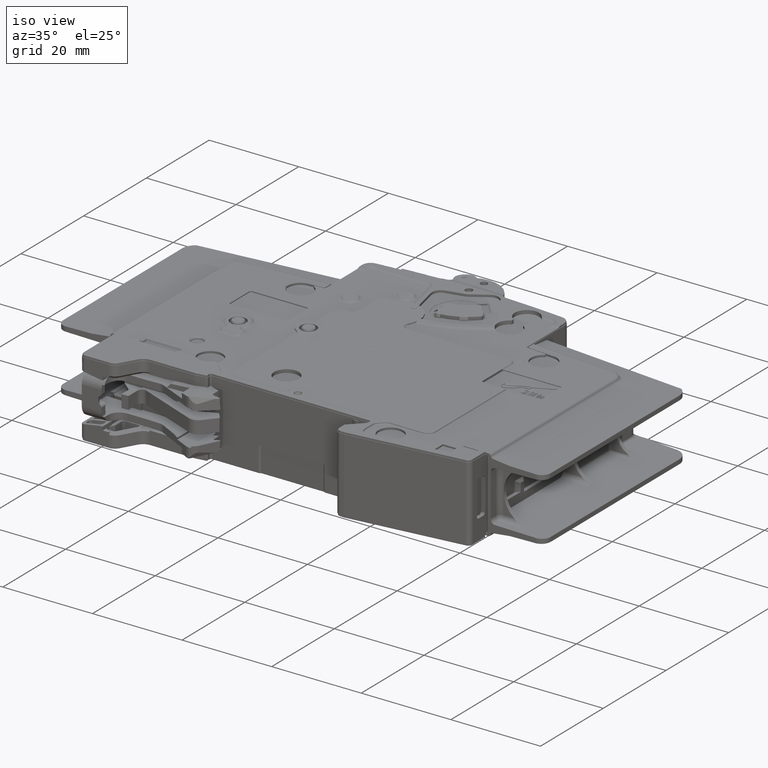
[diagram: clean part render]
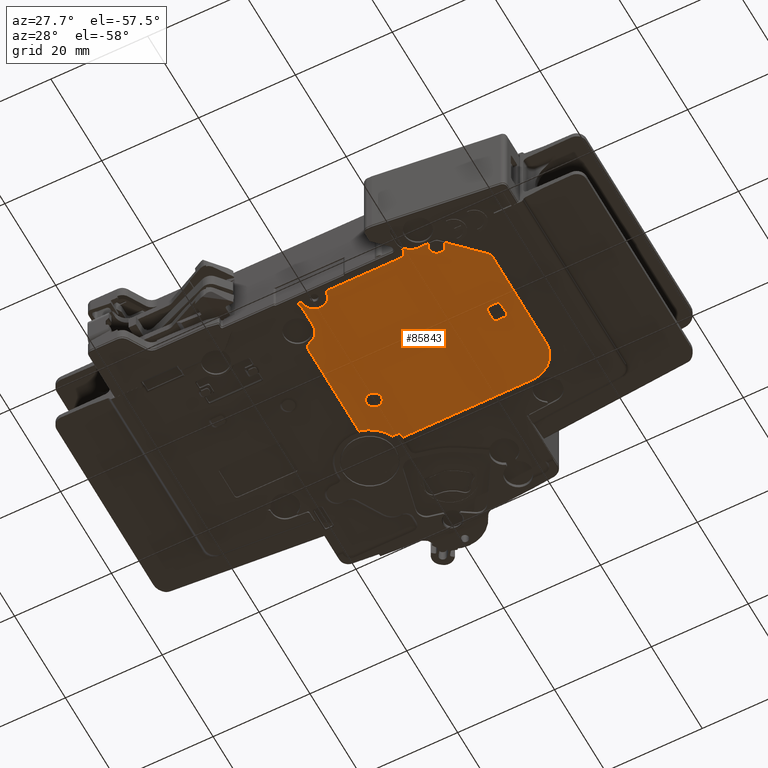
[diagram: tour spotlight — one face highlighted and labeled with its STEP entity id]
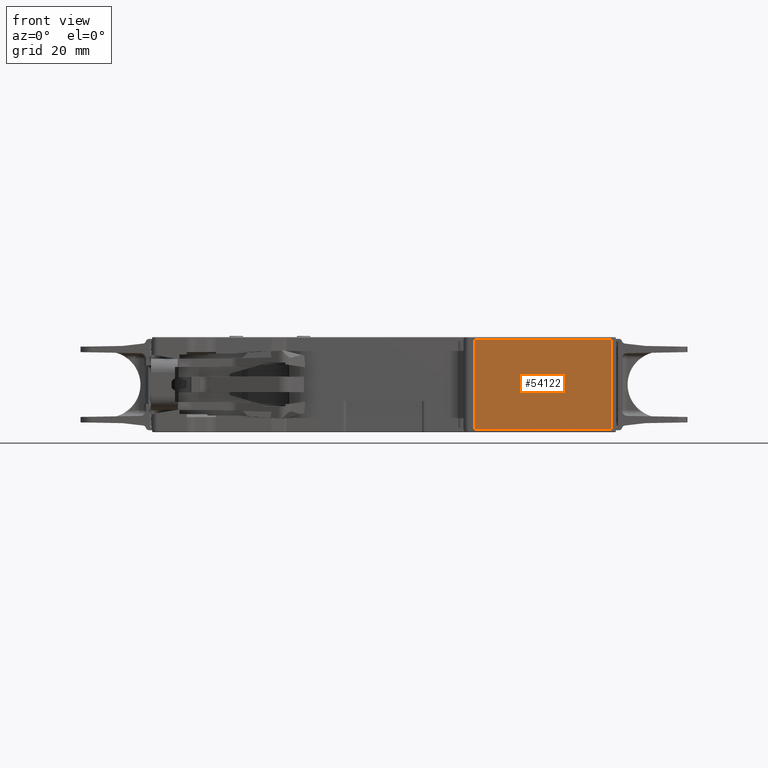
[diagram: tour spotlight — one face highlighted and labeled with its STEP entity id]
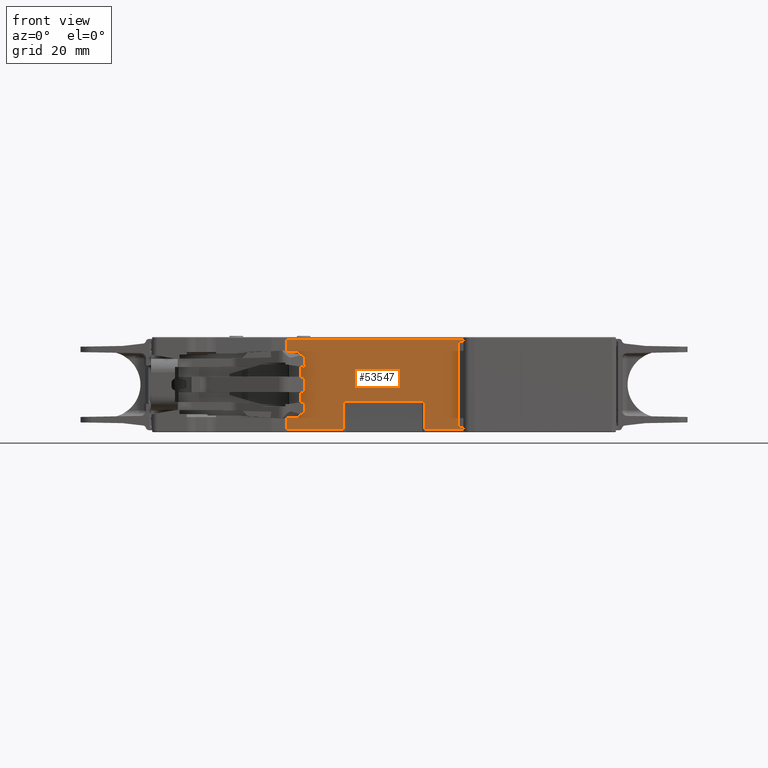
[diagram: tour spotlight — one face highlighted and labeled with its STEP entity id]
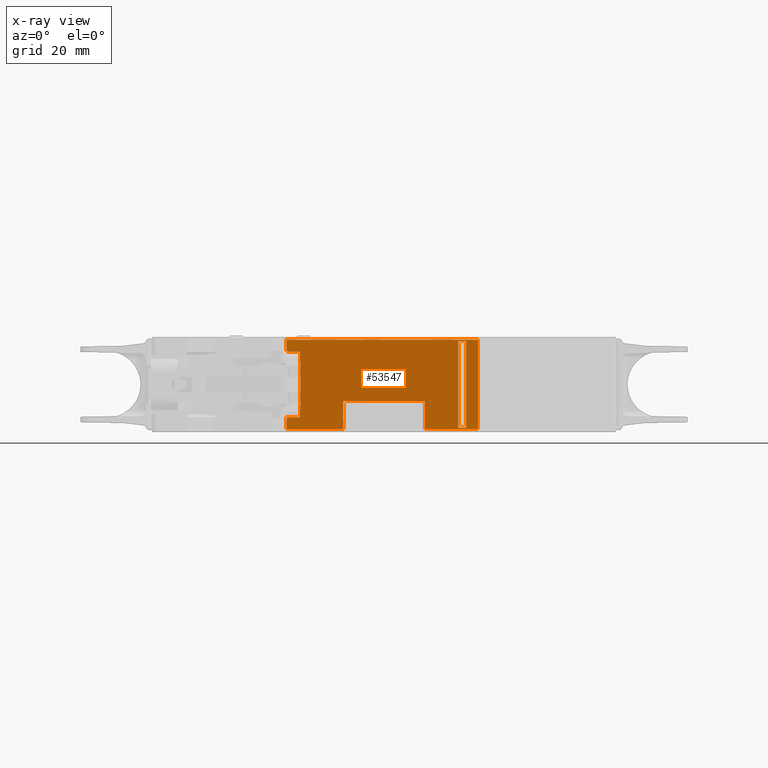
[diagram: x-ray of the same camera — body ghosted, this tour face saturated]
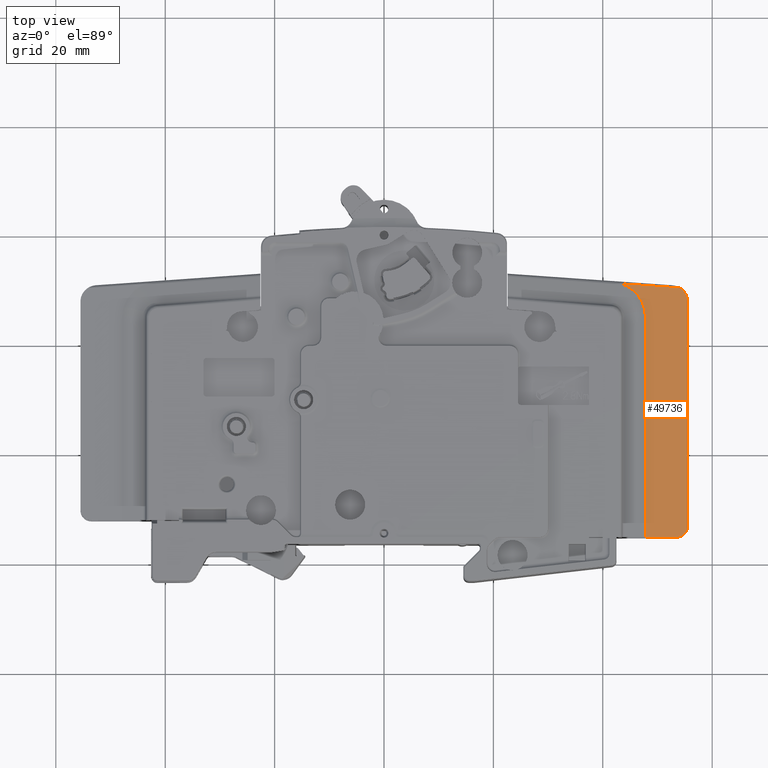
[diagram: tour spotlight — one face highlighted and labeled with its STEP entity id]
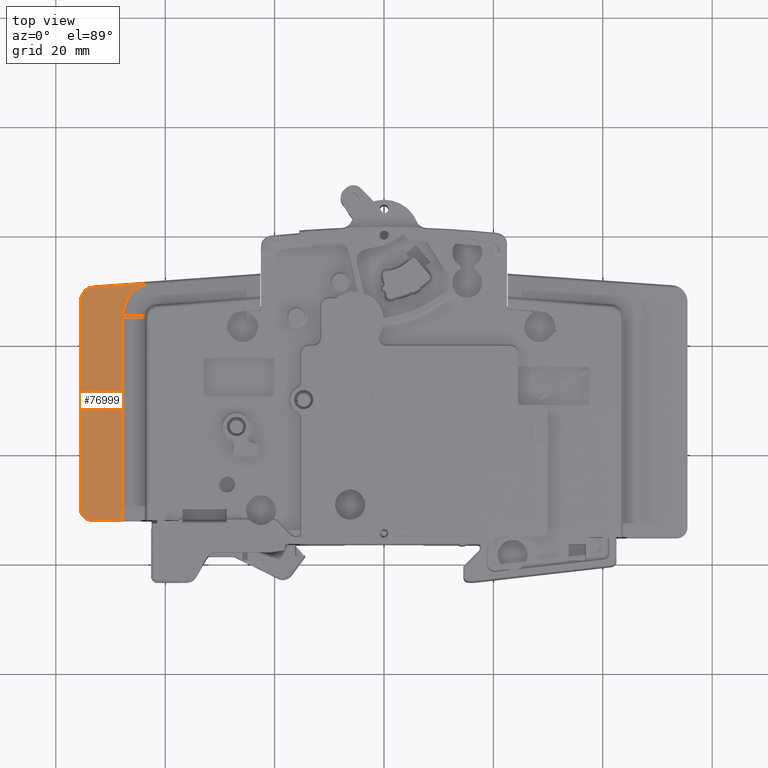
[diagram: tour spotlight — one face highlighted and labeled with its STEP entity id]
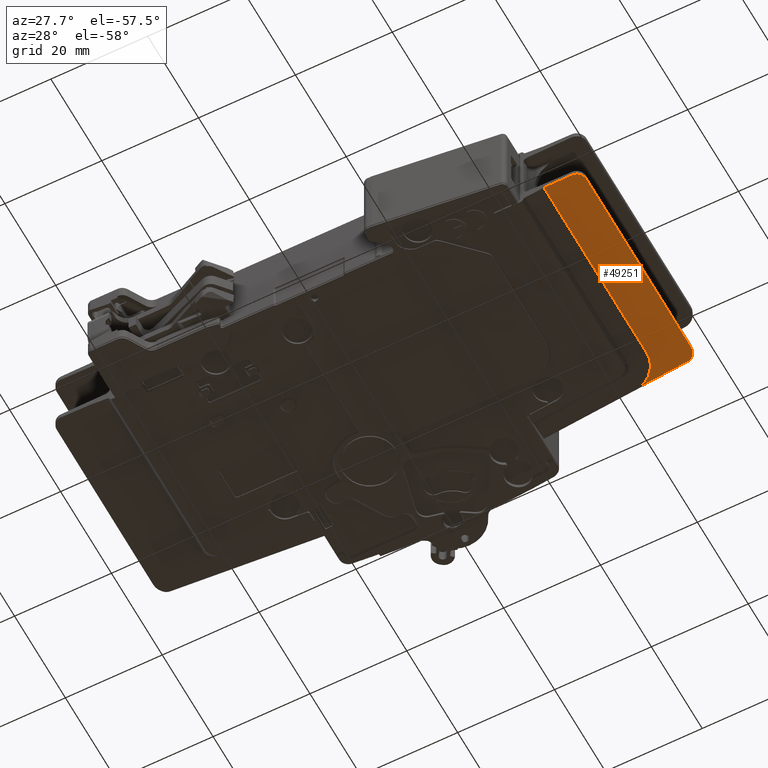
[diagram: tour spotlight — one face highlighted and labeled with its STEP entity id]
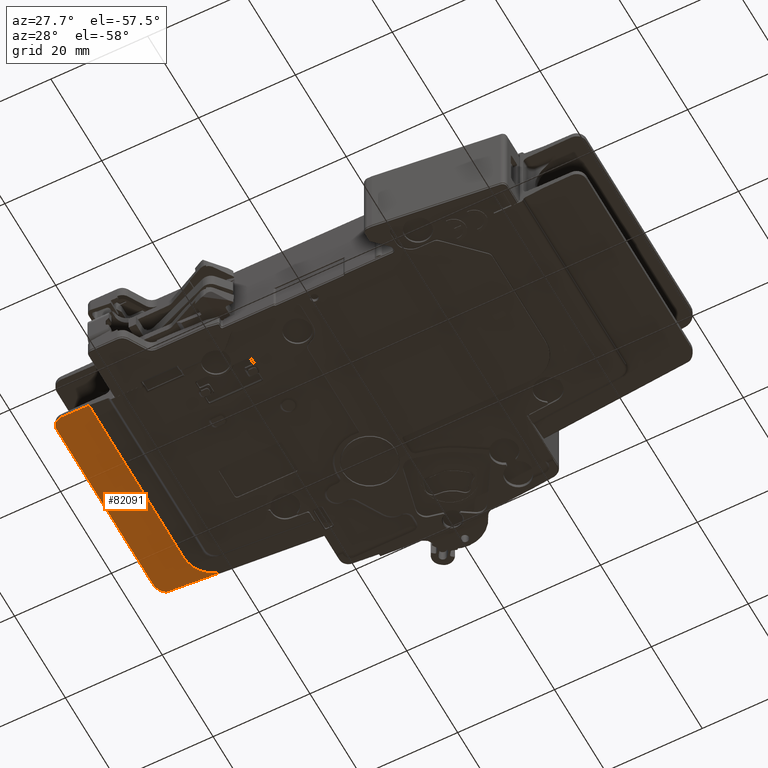
[diagram: tour spotlight — one face highlighted and labeled with its STEP entity id]
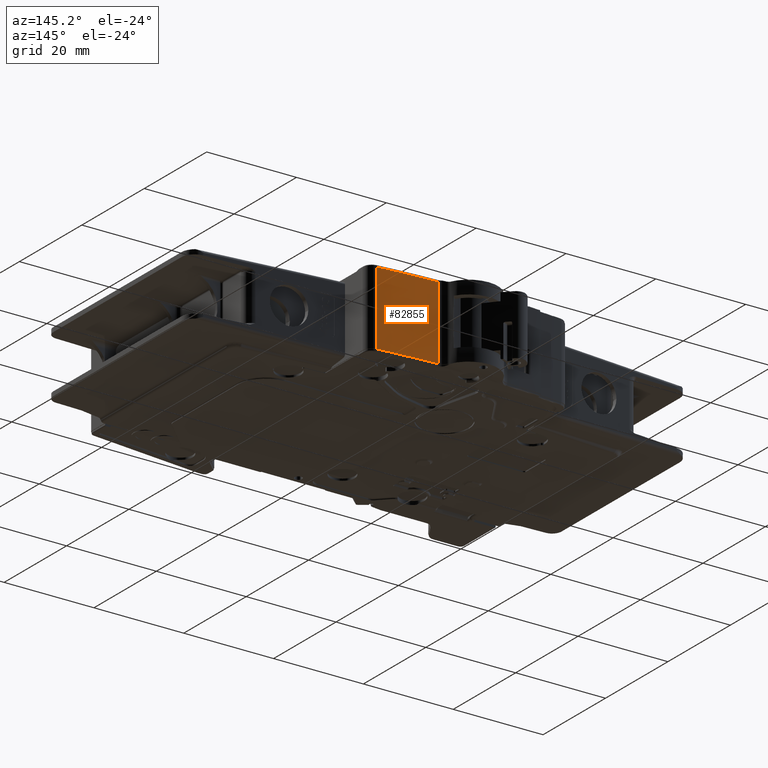
[diagram: tour spotlight — one face highlighted and labeled with its STEP entity id]
A machine part: a face-by-face anatomy tour. The part has 2658 B-rep faces; the first image is the clean iso view, then the 8 largest visible faces are spotlighted one at a time (largest first), each with its STEP entity span.

Face 1 — auxiliary view, entity #85843. In plain terms, the highlighted planar face has unit normal (0, 0, -1).
Definition (entity closure, byte-faithful):
#24060=DIRECTION('',(7.659792001704E-12,1.E0,1.345615654036E-12));
#24061=VECTOR('',#24060,3.194659291051E-1);
#24062=CARTESIAN_POINT('',(3.835640909784E-1,-2.049999999999E1,-8.65E0));
#24063=LINE('',#24062,#24061);
#24072=DIRECTION('',(1.E0,0.E0,0.E0));
#24073=VECTOR('',#24072,2.640932403268E1);
#24074=CARTESIAN_POINT('',(5.906759673218E-1,-2.02E1,-8.65E0));
#24075=LINE('',#24074,#24073);
#24076=CARTESIAN_POINT('',(-4.E-1,-2.05E1,-8.65E0));
#24077=DIRECTION('',(0.E0,0.E0,1.E0));
#24078=DIRECTION('',(0.E0,-1.E0,0.E0));
#24079=AXIS2_PLACEMENT_3D('',#24076,#24077,#24078);
#24081=DIRECTION('',(9.999999999996E-1,-9.095286630790E-7,1.902371440697E-7));
#24082=VECTOR('',#24081,9.158220524253E-1);
#24083=CARTESIAN_POINT('',(-1.315822052432E0,-2.128356325801E1,
-8.650000174224E0));
#24084=LINE('',#24083,#24082);
#24085=DIRECTION('',(0.E0,1.E0,0.E0));
#24086=VECTOR('',#24085,1.949992627281E1);
#24087=CARTESIAN_POINT('',(-6.2E0,-4.484578850974E1,-8.65E0));
#24088=LINE('',#24087,#24086);
#24089=CARTESIAN_POINT('',(-4.7E0,-4.484578850974E1,-8.65E0));
#24090=DIRECTION('',(0.E0,0.E0,-1.E0));
#24091=DIRECTION('',(-3.191489361703E-1,-9.477045723966E-1,0.E0));
#24092=AXIS2_PLACEMENT_3D('',#24089,#24090,#24091);
#24094=CARTESIAN_POINT('',(-6.2E0,-4.93E1,-8.65E0));
#24095=DIRECTION('',(0.E0,0.E0,1.E0));
#24096=DIRECTION('',(1.E0,0.E0,0.E0));
#24097=AXIS2_PLACEMENT_3D('',#24094,#24095,#24096);
#24099=DIRECTION('',(0.E0,1.E0,0.E0));
#24100=VECTOR('',#24099,4.4E0);
#24101=CARTESIAN_POINT('',(-3.E0,-5.37E1,-8.65E0));
#24102=LINE('',#24101,#24100);
#24103=CARTESIAN_POINT('',(-2.798247602693E0,-5.439996488059E1,-8.65E0));
#24104=DIRECTION('',(0.E0,0.E0,-1.E0));
#24105=DIRECTION('',(9.993618246997E-1,-3.572034900185E-2,0.E0));
#24106=AXIS2_PLACEMENT_3D('',#24103,#24104,#24105);
#24108=CARTESIAN_POINT('',(0.E0,-5.450005030896E1,-8.65E0));
#24109=DIRECTION('',(0.E0,0.E0,1.E0));
#24110=DIRECTION('',(9.993608426839E-1,3.574781266329E-2,0.E0));
#24111=AXIS2_PLACEMENT_3D('',#24108,#24109,#24110);
#24113=CARTESIAN_POINT('',(2.798247602693E0,-5.439996488059E1,-8.65E0));
#24114=DIRECTION('',(0.E0,0.E0,-1.E0));
#24115=DIRECTION('',(-4.237262959240E-5,-9.999999991023E-1,0.E0));
#24116=AXIS2_PLACEMENT_3D('',#24113,#24114,#24115);
#24118=DIRECTION('',(-1.E0,-2.156951118998E-12,0.E0));
#24119=VECTOR('',#24118,1.500178464941E1);
#24120=CARTESIAN_POINT('',(1.780001091256E1,-5.475559027923E1,-8.65E0));
#24121=LINE('',#24120,#24119);
#24122=CARTESIAN_POINT('',(1.779996315898E1,-5.620003684102E1,-8.65E0));
#24123=DIRECTION('',(0.E0,0.E0,1.E0));
#24124=DIRECTION('',(9.999999993216E-1,3.683541442532E-5,0.E0));
#24125=AXIS2_PLACEMENT_3D('',#24122,#24123,#24124);
#24127=DIRECTION('',(-7.071067811865E-1,-7.071067811865E-1,1.497403326147E-14));
#24128=VECTOR('',#24127,4.745166004061E-1);
#24129=CARTESIAN_POINT('',(1.972132034356E1,-5.607867965644E1,-8.65E0));
#24130=LINE('',#24129,#24128);
#24131=DIRECTION('',(-1.E0,0.E0,0.E0));
#24132=VECTOR('',#24131,2.268923146830E0);
#24133=CARTESIAN_POINT('',(2.411156383395E1,-5.52E1,-8.65E0));
#24134=LINE('',#24133,#24132);
#24135=DIRECTION('',(-7.071067811865E-1,-7.071067811865E-1,0.E0));
#24136=VECTOR('',#24135,8.553951989375E0);
#24137=CARTESIAN_POINT('',(3.256066017178E1,-4.815710678119E1,-8.65E0));
#24138=LINE('',#24137,#24136);
#24139=CARTESIAN_POINT('',(3.15E1,-4.709644660941E1,-8.65E0));
#24140=DIRECTION('',(0.E0,0.E0,-1.E0));
#24141=DIRECTION('',(1.E0,0.E0,0.E0));
#24142=AXIS2_PLACEMENT_3D('',#24139,#24140,#24141);
#24144=DIRECTION('',(0.E0,-1.E0,0.E0));
#24145=VECTOR('',#24144,2.089644660941E1);
#24146=CARTESIAN_POINT('',(3.3E1,-2.62E1,-8.65E0));
#24147=LINE('',#24146,#24145);
#24148=CARTESIAN_POINT('',(2.7E1,-2.62E1,-8.65E0));
#24149=DIRECTION('',(0.E0,0.E0,-1.E0));
#24150=DIRECTION('',(0.E0,1.E0,0.E0));
#24151=AXIS2_PLACEMENT_3D('',#24148,#24149,#24150);
#24153=CARTESIAN_POINT('',(2.88E1,-3.725E1,-8.65E0));
#24154=DIRECTION('',(0.E0,0.E0,1.E0));
#24155=DIRECTION('',(0.E0,-1.E0,0.E0));
#24156=AXIS2_PLACEMENT_3D('',#24153,#24154,#24155);
#24158=DIRECTION('',(1.E0,-2.732856676023E-14,0.E0));
#24159=VECTOR('',#24158,1.299999999989E0);
#24160=CARTESIAN_POINT('',(2.75E1,-3.803356409098E1,-8.65E0));
#24161=LINE('',#24160,#24159);
#24162=CARTESIAN_POINT('',(2.75E1,-3.725E1,-8.65E0));
#24163=DIRECTION('',(0.E0,0.E0,1.E0));
#24164=DIRECTION('',(-1.E0,0.E0,0.E0));
#24165=AXIS2_PLACEMENT_3D('',#24162,#24163,#24164);
#24167=DIRECTION('',(-1.495879443714E-14,-1.E0,0.E0));
#24168=VECTOR('',#24167,1.899999999989E0);
#24169=CARTESIAN_POINT('',(2.671643590902E1,-3.535E1,-8.65E0));
#24170=LINE('',#24169,#24168);
#24171=CARTESIAN_POINT('',(2.75E1,-3.535E1,-8.65E0));
#24172=DIRECTION('',(0.E0,0.E0,1.E0));
#24173=DIRECTION('',(0.E0,1.E0,0.E0));
#24174=AXIS2_PLACEMENT_3D('',#24171,#24172,#24173);
#24176=DIRECTION('',(-1.E0,2.186285340818E-14,0.E0));
#24177=VECTOR('',#24176,1.299999999989E0);
#24178=CARTESIAN_POINT('',(2.88E1,-3.456643590902E1,-8.65E0));
#24179=LINE('',#24178,#24177);
#24180=CARTESIAN_POINT('',(2.88E1,-3.535E1,-8.65E0));
#24181=DIRECTION('',(0.E0,0.E0,1.E0));
#24182=DIRECTION('',(1.E0,0.E0,0.E0));
#24183=AXIS2_PLACEMENT_3D('',#24180,#24181,#24182);
#24185=DIRECTION('',(2.056834235107E-14,1.E0,0.E0));
#24186=VECTOR('',#24185,1.899999999989E0);
#24187=CARTESIAN_POINT('',(2.958356409098E1,-3.725E1,-8.65E0));
#24188=LINE('',#24187,#24186);
#24189=CARTESIAN_POINT('',(-6.5E-1,-2.98E1,-8.65E0));
#24190=DIRECTION('',(0.E0,0.E0,1.E0));
#24191=DIRECTION('',(1.E0,0.E0,0.E0));
#24192=AXIS2_PLACEMENT_3D('',#24189,#24190,#24191);
#24194=CARTESIAN_POINT('',(-6.5E-1,-2.98E1,-8.65E0));
#24195=DIRECTION('',(0.E0,0.E0,1.E0));
#24196=DIRECTION('',(-1.E0,0.E0,0.E0));
#24197=AXIS2_PLACEMENT_3D('',#24194,#24195,#24196);
#24300=CARTESIAN_POINT('',(2.651210271415E1,-5.420566423882E1,-8.65E0));
#24302=CARTESIAN_POINT('',(2.5E1,-5.395E1,-8.65E0));
#24303=DIRECTION('',(0.E0,0.E0,1.E0));
#24304=DIRECTION('',(9.860055559735E-1,-1.667124578107E-1,0.E0));
#24305=AXIS2_PLACEMENT_3D('',#24302,#24303,#24304);
#24307=CARTESIAN_POINT('',(2.411156383395E1,-5.52E1,-8.65E0));
#24345=CARTESIAN_POINT('',(2.184264068712E1,-5.82E1,-8.65E0));
#24346=DIRECTION('',(0.E0,0.E0,1.E0));
#24347=DIRECTION('',(0.E0,1.E0,0.E0));
#24348=AXIS2_PLACEMENT_3D('',#24345,#24346,#24347);
#24377=CARTESIAN_POINT('',(2.08E1,-5.782842712475E1,-8.65E0));
#24378=DIRECTION('',(0.E0,0.E0,1.E0));
#24379=DIRECTION('',(-7.071067811865E-1,7.071067811865E-1,0.E0));
#24380=AXIS2_PLACEMENT_3D('',#24377,#24378,#24379);
#24394=DIRECTION('',(-2.695798626861E-10,1.E0,0.E0));
#24395=VECTOR('',#24394,3.714022846452E-1);
#24396=CARTESIAN_POINT('',(1.924440972087E1,-5.657139137209E1,-8.65E0));
#24397=LINE('',#24396,#24395);
#24418=DIRECTION('',(-1.E0,4.153368538190E-10,2.320770074795E-11));
#24419=VECTOR('',#24418,6.360615166376E-1);
#24420=CARTESIAN_POINT('',(-2.798232537711E0,-5.475559027940E1,
-8.650000000015E0));
#24421=LINE('',#24420,#24419);
#24443=CARTESIAN_POINT('',(-3.434294054348E0,-5.475559027913E1,-8.65E0));
#24445=CARTESIAN_POINT('',(-4.5E0,-5.37E1,-8.65E0));
#24446=DIRECTION('',(0.E0,0.E0,1.E0));
#24447=DIRECTION('',(7.104706304345E-1,-7.037268527561E-1,0.E0));
#24448=AXIS2_PLACEMENT_3D('',#24445,#24446,#24447);
#24828=CARTESIAN_POINT('',(-6.2E0,-2.534586223692E1,-8.65E0));
#24829=CARTESIAN_POINT('',(-6.200000002948E0,-2.532186013397E1,-8.65E0));
#24830=CARTESIAN_POINT('',(-6.200867190439E0,-2.527539619822E1,-8.65E0));
#24831=CARTESIAN_POINT('',(-6.206107768613E0,-2.520913448581E1,-8.65E0));
#24832=CARTESIAN_POINT('',(-6.215698971674E0,-2.514985548957E1,-8.65E0));
#24833=CARTESIAN_POINT('',(-6.224734543361E0,-2.511531985666E1,-8.65E0));
#24834=CARTESIAN_POINT('',(-6.229821636073E0,-2.509923474636E1,-8.65E0));
#24860=CARTESIAN_POINT('',(-7.470000260182E0,-1.842999825516E1,-8.65E0));
#24861=DIRECTION('',(0.E0,0.E0,1.E0));
#24862=DIRECTION('',(1.828210633131E-1,-9.831462041879E-1,0.E0));
#24863=AXIS2_PLACEMENT_3D('',#24860,#24861,#24862);
#25370=CARTESIAN_POINT('',(3.835640909809E-1,-2.018053407089E1,-8.65E0));
#25372=CARTESIAN_POINT('',(3.835640909809E-1,-2.018053407089E1,-8.65E0));
#25373=CARTESIAN_POINT('',(4.037541587725E-1,-2.018529957568E1,-8.65E0));
#25374=CARTESIAN_POINT('',(4.460651619763E-1,-2.019291664259E1,-8.65E0));
#25375=CARTESIAN_POINT('',(5.162751551004E-1,-2.019901809602E1,-8.65E0));
#25376=CARTESIAN_POINT('',(5.653709220221E-1,-2.02E1,-8.65E0));
#25377=CARTESIAN_POINT('',(5.906759673218E-1,-2.02E1,-8.65E0));
#40547=CARTESIAN_POINT('',(-5.178723404255E0,-4.626734536833E1,-8.65E0));
#40548=CARTESIAN_POINT('',(-6.2E0,-4.484578850974E1,-8.65E0));
#40549=VERTEX_POINT('',#40547);
#40550=VERTEX_POINT('',#40548);
#40551=CARTESIAN_POINT('',(3.3E1,-2.62E1,-8.65E0));
#40552=CARTESIAN_POINT('',(3.3E1,-4.709644660941E1,-8.65E0));
#40553=VERTEX_POINT('',#40551);
#40554=VERTEX_POINT('',#40552);
#40555=CARTESIAN_POINT('',(-3.E0,-4.93E1,-8.65E0));
#40556=VERTEX_POINT('',#40555);
#40558=VERTEX_POINT('',#24443);
#40563=CARTESIAN_POINT('',(1.938578643763E1,-5.641421356237E1,-8.65E0));
#40564=CARTESIAN_POINT('',(1.924440972087E1,-5.657139137209E1,-8.65E0));
#40565=VERTEX_POINT('',#40563);
#40566=VERTEX_POINT('',#40564);
#40696=VERTEX_POINT('',#24828);
#40697=VERTEX_POINT('',#24834);
#40724=VERTEX_POINT('',#25370);
#40782=CARTESIAN_POINT('',(2.184264068712E1,-5.52E1,-8.65E0));
#40783=CARTESIAN_POINT('',(1.972132034356E1,-5.607867965644E1,-8.65E0));
#40784=VERTEX_POINT('',#40782);
#40785=VERTEX_POINT('',#40783);
#40786=CARTESIAN_POINT('',(-3.E0,-5.37E1,-8.65E0));
#40787=VERTEX_POINT('',#40786);
#40788=VERTEX_POINT('',#25377);
#40801=CARTESIAN_POINT('',(-4.E-1,-2.128356409098E1,-8.65E0));
#40802=CARTESIAN_POINT('',(3.835640909809E-1,-2.05E1,-8.65E0));
#40803=VERTEX_POINT('',#40801);
#40804=VERTEX_POINT('',#40802);
#40805=CARTESIAN_POINT('',(-1.315822052432E0,-2.128356325801E1,
-8.650000174224E0));
#40806=VERTEX_POINT('',#40805);
#40813=CARTESIAN_POINT('',(2.88E1,-3.803356409098E1,-8.65E0));
#40814=CARTESIAN_POINT('',(2.958356409098E1,-3.725E1,-8.65E0));
#40815=VERTEX_POINT('',#40813);
#40816=VERTEX_POINT('',#40814);
#40819=CARTESIAN_POINT('',(2.958356409098E1,-3.535000000001E1,-8.65E0));
#40820=VERTEX_POINT('',#40819);
#40823=CARTESIAN_POINT('',(2.88E1,-3.456643590902E1,-8.65E0));
#40824=VERTEX_POINT('',#40823);
#40827=CARTESIAN_POINT('',(2.750000000001E1,-3.456643590902E1,-8.65E0));
#40828=VERTEX_POINT('',#40827);
#40831=CARTESIAN_POINT('',(2.671643590902E1,-3.535E1,-8.65E0));
#40832=VERTEX_POINT('',#40831);
#40835=CARTESIAN_POINT('',(2.671643590902E1,-3.724999999999E1,-8.65E0));
#40836=VERTEX_POINT('',#40835);
#40839=CARTESIAN_POINT('',(2.75E1,-3.803356409098E1,-8.65E0));
#40840=VERTEX_POINT('',#40839);
#40845=CARTESIAN_POINT('',(8.835640909809E-1,-2.98E1,-8.65E0));
#40846=CARTESIAN_POINT('',(-2.183564090981E0,-2.98E1,-8.65E0));
#40847=VERTEX_POINT('',#40845);
#40848=VERTEX_POINT('',#40846);
#40853=VERTEX_POINT('',#24300);
#40854=VERTEX_POINT('',#24307);
#40859=CARTESIAN_POINT('',(-2.442849154774E0,-5.441266794396E1,-8.65E0));
#40860=CARTESIAN_POINT('',(-2.798232533910E0,-5.475559027953E1,-8.65E0));
#40861=VERTEX_POINT('',#40859);
#40862=VERTEX_POINT('',#40860);
#40865=CARTESIAN_POINT('',(2.442849154741E0,-5.441266794393E1,-8.65E0));
#40866=VERTEX_POINT('',#40865);
#40869=CARTESIAN_POINT('',(2.798232533910E0,-5.475559027953E1,-8.65E0));
#40870=VERTEX_POINT('',#40869);
#40873=CARTESIAN_POINT('',(1.780001091256E1,-5.475559027923E1,-8.65E0));
#40874=VERTEX_POINT('',#40873);
#40877=CARTESIAN_POINT('',(1.924440972056E1,-5.619998363423E1,-8.65E0));
#40878=VERTEX_POINT('',#40877);
#40879=CARTESIAN_POINT('',(3.256066017178E1,-4.815710678119E1,-8.65E0));
#40880=VERTEX_POINT('',#40879);
#40953=CARTESIAN_POINT('',(2.7E1,-2.02E1,-8.65E0));
#40954=VERTEX_POINT('',#40953);
#85757=CARTESIAN_POINT('',(0.E0,0.E0,-8.65E0));
#85758=DIRECTION('',(0.E0,0.E0,-1.E0));
#85759=DIRECTION('',(-1.E0,0.E0,0.E0));
#85760=AXIS2_PLACEMENT_3D('',#85757,#85758,#85759);
#85761=PLANE('',#85760);
#85763=ORIENTED_EDGE('',*,*,#85762,.F.);
#85765=ORIENTED_EDGE('',*,*,#85764,.F.);
#85766=ORIENTED_EDGE('',*,*,#85740,.F.);
#85768=ORIENTED_EDGE('',*,*,#85767,.F.);
#85770=ORIENTED_EDGE('',*,*,#85769,.F.);
#85772=ORIENTED_EDGE('',*,*,#85771,.F.);
#85774=ORIENTED_EDGE('',*,*,#85773,.F.);
#85776=ORIENTED_EDGE('',*,*,#85775,.F.);
#85778=ORIENTED_EDGE('',*,*,#85777,.F.);
#85780=ORIENTED_EDGE('',*,*,#85779,.F.);
#85782=ORIENTED_EDGE('',*,*,#85781,.F.);
#85784=ORIENTED_EDGE('',*,*,#85783,.F.);
#85786=ORIENTED_EDGE('',*,*,#85785,.F.);
#85788=ORIENTED_EDGE('',*,*,#85787,.F.);
#85790=ORIENTED_EDGE('',*,*,#85789,.F.);
#85792=ORIENTED_EDGE('',*,*,#85791,.F.);
#85794=ORIENTED_EDGE('',*,*,#85793,.F.);
#85796=ORIENTED_EDGE('',*,*,#85795,.F.);
#85798=ORIENTED_EDGE('',*,*,#85797,.F.);
#85800=ORIENTED_EDGE('',*,*,#85799,.F.);
#85802=ORIENTED_EDGE('',*,*,#85801,.F.);
#85804=ORIENTED_EDGE('',*,*,#85803,.F.);
#85806=ORIENTED_EDGE('',*,*,#85805,.F.);
#85808=ORIENTED_EDGE('',*,*,#85807,.F.);
#85810=ORIENTED_EDGE('',*,*,#85809,.F.);
#85812=ORIENTED_EDGE('',*,*,#85811,.F.);
#85814=ORIENTED_EDGE('',*,*,#85813,.F.);
#85816=ORIENTED_EDGE('',*,*,#85815,.F.);
#85817=EDGE_LOOP('',(#85763,#85765,#85766,#85768,#85770,#85772,#85774,#85776,
#85778,#85780,#85782,#85784,#85786,#85788,#85790,#85792,#85794,#85796,#85798,
#85800,#85802,#85804,#85806,#85808,#85810,#85812,#85814,#85816));
#85818=FACE_OUTER_BOUND('',#85817,.F.);
#85820=ORIENTED_EDGE('',*,*,#85819,.F.);
#85822=ORIENTED_EDGE('',*,*,#85821,.F.);
#85824=ORIENTED_EDGE('',*,*,#85823,.F.);
#85826=ORIENTED_EDGE('',*,*,#85825,.F.);
#85828=ORIENTED_EDGE('',*,*,#85827,.F.);
#85830=ORIENTED_EDGE('',*,*,#85829,.F.);
#85832=ORIENTED_EDGE('',*,*,#85831,.F.);
#85834=ORIENTED_EDGE('',*,*,#85833,.F.);
#85835=EDGE_LOOP('',(#85820,#85822,#85824,#85826,#85828,#85830,#85832,#85834));
#85836=FACE_BOUND('',#85835,.F.);
#85838=ORIENTED_EDGE('',*,*,#85837,.F.);
#85840=ORIENTED_EDGE('',*,*,#85839,.F.);
#85841=EDGE_LOOP('',(#85838,#85840));
#85842=FACE_BOUND('',#85841,.F.);
#24080=CIRCLE('',#24079,7.835640909809E-1);
#24093=CIRCLE('',#24092,1.5E0);
#24098=CIRCLE('',#24097,3.2E0);
#24107=CIRCLE('',#24106,3.556253992648E-1);
#24112=CIRCLE('',#24111,2.444411518246E0);
#24117=CIRCLE('',#24116,3.556253992648E-1);
#24126=CIRCLE('',#24125,1.444446562563E0);
#24143=CIRCLE('',#24142,1.5E0);
#24152=CIRCLE('',#24151,6.E0);
#24157=CIRCLE('',#24156,7.835640909809E-1);
#24166=CIRCLE('',#24165,7.835640909809E-1);
#24175=CIRCLE('',#24174,7.835640909809E-1);
#24184=CIRCLE('',#24183,7.835640909809E-1);
#24193=CIRCLE('',#24192,1.533564090981E0);
#24198=CIRCLE('',#24197,1.533564090981E0);
#24306=CIRCLE('',#24305,1.533564090981E0);
#24349=CIRCLE('',#24348,3.E0);
#24381=CIRCLE('',#24380,2.E0);
#24449=CIRCLE('',#24448,1.5E0);
#24835=B_SPLINE_CURVE_WITH_KNOTS('',3,(#24828,#24829,#24830,#24831,#24832,
#24833,#24834),.UNSPECIFIED.,.F.,.F.,(4,1,1,1,4),(0.E0,2.5E-1,5.E-1,7.5E-1,
1.E0),.UNSPECIFIED.);
#24864=CIRCLE('',#24863,6.783565315912E0);
#25378=B_SPLINE_CURVE_WITH_KNOTS('',3,(#25372,#25373,#25374,#25375,#25376,
#25377),.UNSPECIFIED.,.F.,.F.,(4,1,1,4),(0.E0,3.333333333333E-1,
6.666666666667E-1,1.E0),.UNSPECIFIED.);
#85740=EDGE_CURVE('',#40804,#40724,#24063,.T.);
#85762=EDGE_CURVE('',#40788,#40954,#24075,.T.);
#85764=EDGE_CURVE('',#40724,#40788,#25378,.T.);
#85767=EDGE_CURVE('',#40803,#40804,#24080,.T.);
#85769=EDGE_CURVE('',#40806,#40803,#24084,.T.);
#85771=EDGE_CURVE('',#40697,#40806,#24864,.T.);
#85773=EDGE_CURVE('',#40696,#40697,#24835,.T.);
#85775=EDGE_CURVE('',#40550,#40696,#24088,.T.);
#85777=EDGE_CURVE('',#40549,#40550,#24093,.T.);
#85779=EDGE_CURVE('',#40556,#40549,#24098,.T.);
#85781=EDGE_CURVE('',#40787,#40556,#24102,.T.);
#85783=EDGE_CURVE('',#40558,#40787,#24449,.T.);
#85785=EDGE_CURVE('',#40862,#40558,#24421,.T.);
#85787=EDGE_CURVE('',#40861,#40862,#24107,.T.);
#85789=EDGE_CURVE('',#40866,#40861,#24112,.T.);
#85791=EDGE_CURVE('',#40870,#40866,#24117,.T.);
#85793=EDGE_CURVE('',#40874,#40870,#24121,.T.);
#85795=EDGE_CURVE('',#40878,#40874,#24126,.T.);
#85797=EDGE_CURVE('',#40566,#40878,#24397,.T.);
#85799=EDGE_CURVE('',#40565,#40566,#24381,.T.);
#85801=EDGE_CURVE('',#40785,#40565,#24130,.T.);
#85803=EDGE_CURVE('',#40784,#40785,#24349,.T.);
#85805=EDGE_CURVE('',#40854,#40784,#24134,.T.);
#85807=EDGE_CURVE('',#40853,#40854,#24306,.T.);
#85809=EDGE_CURVE('',#40880,#40853,#24138,.T.);
#85811=EDGE_CURVE('',#40554,#40880,#24143,.T.);
#85813=EDGE_CURVE('',#40553,#40554,#24147,.T.);
#85815=EDGE_CURVE('',#40954,#40553,#24152,.T.);
#85819=EDGE_CURVE('',#40815,#40816,#24157,.T.);
#85821=EDGE_CURVE('',#40840,#40815,#24161,.T.);
#85823=EDGE_CURVE('',#40836,#40840,#24166,.T.);
#85825=EDGE_CURVE('',#40832,#40836,#24170,.T.);
#85827=EDGE_CURVE('',#40828,#40832,#24175,.T.);
#85829=EDGE_CURVE('',#40824,#40828,#24179,.T.);
#85831=EDGE_CURVE('',#40820,#40824,#24184,.T.);
#85833=EDGE_CURVE('',#40816,#40820,#24188,.T.);
#85837=EDGE_CURVE('',#40847,#40848,#24193,.T.);
#85839=EDGE_CURVE('',#40848,#40847,#24198,.T.);
#85843=ADVANCED_FACE('',(#85818,#85836,#85842),#85761,.T.);

Face 2 — front view, entity #54122. In plain terms, the highlighted planar face has unit normal (0.1132, -0.9936, 0).
Definition (entity closure, byte-faithful):
#5539=DIRECTION('',(0.E0,0.E0,-1.E0));
#5540=VECTOR('',#5539,1.64E1);
#5541=CARTESIAN_POINT('',(1.65E1,-6.33E1,8.2E0));
#5542=LINE('',#5541,#5540);
#5547=DIRECTION('',(-9.935718556766E-1,-1.132032137679E-1,0.E0));
#5548=VECTOR('',#5547,2.527567892578E1);
#5549=CARTESIAN_POINT('',(4.161320321377E1,-6.043871191544E1,8.2E0));
#5550=LINE('',#5549,#5548);
#5551=DIRECTION('',(-9.935718556766E-1,-1.132032137679E-1,0.E0));
#5552=VECTOR('',#5551,2.527567892578E1);
#5553=CARTESIAN_POINT('',(4.161320321377E1,-6.043871191544E1,-8.2E0));
#5554=LINE('',#5553,#5552);
#5555=DIRECTION('',(0.E0,-1.256447520551E-14,1.E0));
#5556=VECTOR('',#5555,1.64E1);
#5557=CARTESIAN_POINT('',(4.161320321377E1,-6.043871191544E1,-8.2E0));
#5558=LINE('',#5557,#5556);
#39536=CARTESIAN_POINT('',(4.161320321377E1,-6.043871191544E1,-8.2E0));
#39537=CARTESIAN_POINT('',(1.65E1,-6.33E1,-8.2E0));
#39538=VERTEX_POINT('',#39536);
#39539=VERTEX_POINT('',#39537);
#41926=CARTESIAN_POINT('',(4.161320321377E1,-6.043871191544E1,8.2E0));
#41927=CARTESIAN_POINT('',(1.65E1,-6.33E1,8.2E0));
#41928=VERTEX_POINT('',#41926);
#41929=VERTEX_POINT('',#41927);
#54110=CARTESIAN_POINT('',(3.6E1,-6.107825563812E1,0.E0));
#54111=DIRECTION('',(1.132032137679E-1,-9.935718556766E-1,0.E0));
#54112=DIRECTION('',(-9.935718556766E-1,-1.132032137679E-1,0.E0));
#54113=AXIS2_PLACEMENT_3D('',#54110,#54111,#54112);
#54114=PLANE('',#54113);
#54115=ORIENTED_EDGE('',*,*,#54097,.F.);
#54116=ORIENTED_EDGE('',*,*,#53467,.F.);
#54118=ORIENTED_EDGE('',*,*,#54117,.F.);
#54119=ORIENTED_EDGE('',*,*,#53850,.T.);
#54120=EDGE_LOOP('',(#54115,#54116,#54118,#54119));
#54121=FACE_OUTER_BOUND('',#54120,.F.);
#53467=EDGE_CURVE('',#41928,#41929,#5550,.T.);
#53850=EDGE_CURVE('',#39538,#39539,#5554,.T.);
#54097=EDGE_CURVE('',#41929,#39539,#5542,.T.);
#54117=EDGE_CURVE('',#39538,#41928,#5558,.T.);
#54122=ADVANCED_FACE('',(#54121),#54114,.T.);

Face 3 — front view, entity #53547. An x-ray twin of the same camera follows (body ghosted, this face saturated) — the face is partly hidden behind the body. In plain terms, the highlighted planar face has unit normal (0, -1, 0).
Definition (entity closure, byte-faithful):
#5121=DIRECTION('',(-2.617694830775E-2,0.E0,9.996573249756E-1));
#5122=VECTOR('',#5121,4.738038839366E-2);
#5123=CARTESIAN_POINT('',(-1.758821633529E1,-5.65E1,6.E0));
#5124=LINE('',#5123,#5122);
#5125=DIRECTION('',(9.701425001453E-1,0.E0,-2.425356250363E-1));
#5126=VECTOR('',#5125,2.158325918664E-1);
#5127=CARTESIAN_POINT('',(-1.779884497956E1,-5.65E1,6.099711244889E0));
#5128=LINE('',#5127,#5126);
#5129=DIRECTION('',(0.E0,1.014921496910E-14,1.E0));
#5130=VECTOR('',#5129,2.100288755111E0);
#5131=CARTESIAN_POINT('',(-1.779884497956E1,-5.65E1,6.099711244889E0));
#5132=LINE('',#5131,#5130);
#5133=DIRECTION('',(-1.E0,0.E0,0.E0));
#5134=VECTOR('',#5133,3.499884497956E1);
#5135=CARTESIAN_POINT('',(1.72E1,-5.65E1,8.2E0));
#5136=LINE('',#5135,#5134);
#5137=DIRECTION('',(-1.E0,0.E0,0.E0));
#5138=VECTOR('',#5137,9.752786404500E0);
#5139=CARTESIAN_POINT('',(1.72E1,-5.65E1,-8.2E0));
#5140=LINE('',#5139,#5138);
#5141=DIRECTION('',(-1.E0,0.E0,0.E0));
#5142=VECTOR('',#5141,1.035163138406E1);
#5143=CARTESIAN_POINT('',(-7.447213595500E0,-5.65E1,-8.2E0));
#5144=LINE('',#5143,#5142);
#5145=DIRECTION('',(0.E0,0.E0,-1.E0));
#5146=VECTOR('',#5145,2.100288755111E0);
#5147=CARTESIAN_POINT('',(-1.779884497956E1,-5.65E1,-6.099711244889E0));
#5148=LINE('',#5147,#5146);
#5149=DIRECTION('',(9.701425001453E-1,0.E0,2.425356250363E-1));
#5150=VECTOR('',#5149,2.158325918664E-1);
#5151=CARTESIAN_POINT('',(-1.779884497956E1,-5.65E1,-6.099711244889E0));
#5152=LINE('',#5151,#5150);
#5153=DIRECTION('',(-2.617694830775E-2,0.E0,-9.996573249756E-1));
#5154=VECTOR('',#5153,4.738038839367E-2);
#5155=CARTESIAN_POINT('',(-1.758821633529E1,-5.65E1,-6.E0));
#5156=LINE('',#5155,#5154);
#5157=DIRECTION('',(-3.595852764270E-2,0.E0,-9.993532830235E-1));
#5158=VECTOR('',#5157,3.001941406470E0);
#5159=CARTESIAN_POINT('',(-1.529205460695E1,-5.65E1,-3.E0));
#5160=LINE('',#5159,#5158);
#5161=DIRECTION('',(0.E0,0.E0,1.E0));
#5162=VECTOR('',#5161,5.999999999999E0);
#5163=CARTESIAN_POINT('',(-1.529205460695E1,-5.65E1,-3.E0));
#5164=LINE('',#5163,#5162);
#5165=DIRECTION('',(-1.E0,0.E0,0.E0));
#5166=VECTOR('',#5165,1.442220510186E0);
#5167=CARTESIAN_POINT('',(1.502111025509E1,-5.65E1,-7.9E0));
#5168=LINE('',#5167,#5166);
#5181=DIRECTION('',(1.E0,0.E0,0.E0));
#5182=VECTOR('',#5181,2.188216335294E0);
#5183=CARTESIAN_POINT('',(-1.758821633529E1,-5.65E1,6.E0));
#5184=LINE('',#5183,#5182);
#5189=DIRECTION('',(3.595852764268E-2,0.E0,-9.993532830235E-1));
#5190=VECTOR('',#5189,3.001941406472E0);
#5191=CARTESIAN_POINT('',(-1.54E1,-5.65E1,6.E0));
#5192=LINE('',#5191,#5190);
#5213=DIRECTION('',(-1.E0,0.E0,0.E0));
#5214=VECTOR('',#5213,2.188216335294E0);
#5215=CARTESIAN_POINT('',(-1.54E1,-5.65E1,-6.E0));
#5216=LINE('',#5215,#5214);
#5439=DIRECTION('',(0.E0,0.E0,1.E0));
#5440=VECTOR('',#5439,1.64E1);
#5441=CARTESIAN_POINT('',(1.72E1,-5.65E1,-8.2E0));
#5442=LINE('',#5441,#5440);
#33002=DIRECTION('',(3.040303052050E-14,0.E0,1.E0));
#33003=VECTOR('',#33002,5.2E0);
#33004=CARTESIAN_POINT('',(-7.447213595500E0,-5.65E1,-8.2E0));
#33005=LINE('',#33004,#33003);
#33006=DIRECTION('',(-1.E0,0.E0,0.E0));
#33007=VECTOR('',#33006,1.489442719100E1);
#33008=CARTESIAN_POINT('',(7.447213595500E0,-5.65E1,-3.E0));
#33009=LINE('',#33008,#33007);
#33027=DIRECTION('',(2.954901280925E-14,0.E0,-1.E0));
#33028=VECTOR('',#33027,5.2E0);
#33029=CARTESIAN_POINT('',(7.447213595500E0,-5.65E1,-3.E0));
#33030=LINE('',#33029,#33028);
#33035=DIRECTION('',(0.E0,0.E0,-1.E0));
#33036=VECTOR('',#33035,1.58E1);
#33037=CARTESIAN_POINT('',(1.502111025509E1,-5.65E1,7.9E0));
#33038=LINE('',#33037,#33036);
#33039=DIRECTION('',(0.E0,0.E0,1.E0));
#33040=VECTOR('',#33039,1.58E1);
#33041=CARTESIAN_POINT('',(1.357888974491E1,-5.65E1,-7.9E0));
#33042=LINE('',#33041,#33040);
#33043=DIRECTION('',(-1.E0,0.E0,0.E0));
#33044=VECTOR('',#33043,1.442220510186E0);
#33045=CARTESIAN_POINT('',(1.502111025509E1,-5.65E1,7.9E0));
#33046=LINE('',#33045,#33044);
#39594=CARTESIAN_POINT('',(-1.779884497956E1,-5.65E1,-8.2E0));
#39595=VERTEX_POINT('',#39594);
#39596=CARTESIAN_POINT('',(1.72E1,-5.65E1,-8.2E0));
#39597=VERTEX_POINT('',#39596);
#39638=CARTESIAN_POINT('',(-1.54E1,-5.65E1,-6.E0));
#39640=VERTEX_POINT('',#39638);
#40142=CARTESIAN_POINT('',(7.447213595500E0,-5.65E1,-8.2E0));
#40143=VERTEX_POINT('',#40142);
#40144=CARTESIAN_POINT('',(-7.447213595500E0,-5.65E1,-8.2E0));
#40145=VERTEX_POINT('',#40144);
#41103=CARTESIAN_POINT('',(1.502111025509E1,-5.65E1,-7.9E0));
#41104=CARTESIAN_POINT('',(1.357888974491E1,-5.65E1,-7.9E0));
#41105=VERTEX_POINT('',#41103);
#41106=VERTEX_POINT('',#41104);
#41177=CARTESIAN_POINT('',(-1.529205460695E1,-5.65E1,-3.E0));
#41178=VERTEX_POINT('',#41177);
#41876=CARTESIAN_POINT('',(1.72E1,-5.65E1,8.2E0));
#41877=CARTESIAN_POINT('',(-1.779884497956E1,-5.65E1,8.2E0));
#41878=VERTEX_POINT('',#41876);
#41879=VERTEX_POINT('',#41877);
#43733=CARTESIAN_POINT('',(-1.54E1,-5.65E1,6.E0));
#43734=VERTEX_POINT('',#43733);
#44335=CARTESIAN_POINT('',(7.447213595500E0,-5.65E1,-3.E0));
#44336=VERTEX_POINT('',#44335);
#44337=CARTESIAN_POINT('',(-7.447213595500E0,-5.65E1,-3.E0));
#44338=VERTEX_POINT('',#44337);
#44347=CARTESIAN_POINT('',(1.502111025509E1,-5.65E1,7.9E0));
#44348=CARTESIAN_POINT('',(1.357888974491E1,-5.65E1,7.9E0));
#44349=VERTEX_POINT('',#44347);
#44350=VERTEX_POINT('',#44348);
#44685=CARTESIAN_POINT('',(-1.529205460695E1,-5.65E1,2.999999999998E0));
#44686=VERTEX_POINT('',#44685);
#45410=CARTESIAN_POINT('',(-1.758821633529E1,-5.65E1,6.E0));
#45411=CARTESIAN_POINT('',(-1.758945660927E1,-5.65E1,6.047364152318E0));
#45412=VERTEX_POINT('',#45410);
#45413=VERTEX_POINT('',#45411);
#45414=CARTESIAN_POINT('',(-1.779884497956E1,-5.65E1,6.099711244889E0));
#45415=VERTEX_POINT('',#45414);
#45416=CARTESIAN_POINT('',(-1.758821633529E1,-5.65E1,-6.E0));
#45417=CARTESIAN_POINT('',(-1.758945660927E1,-5.65E1,-6.047364152318E0));
#45418=VERTEX_POINT('',#45416);
#45419=VERTEX_POINT('',#45417);
#45420=CARTESIAN_POINT('',(-1.779884497956E1,-5.65E1,-6.099711244889E0));
#45421=VERTEX_POINT('',#45420);
#53495=CARTESIAN_POINT('',(0.E0,-5.65E1,0.E0));
#53496=DIRECTION('',(0.E0,-1.E0,0.E0));
#53497=DIRECTION('',(-1.E0,0.E0,0.E0));
#53498=AXIS2_PLACEMENT_3D('',#53495,#53496,#53497);
#53499=PLANE('',#53498);
#53501=ORIENTED_EDGE('',*,*,#53500,.T.);
#53503=ORIENTED_EDGE('',*,*,#53502,.F.);
#53505=ORIENTED_EDGE('',*,*,#53504,.T.);
#53506=ORIENTED_EDGE('',*,*,#53387,.F.);
#53508=ORIENTED_EDGE('',*,*,#53507,.F.);
#53510=ORIENTED_EDGE('',*,*,#53509,.T.);
#53512=ORIENTED_EDGE('',*,*,#53511,.F.);
#53514=ORIENTED_EDGE('',*,*,#53513,.T.);
#53516=ORIENTED_EDGE('',*,*,#53515,.F.);
#53518=ORIENTED_EDGE('',*,*,#53517,.T.);
#53520=ORIENTED_EDGE('',*,*,#53519,.F.);
#53522=ORIENTED_EDGE('',*,*,#53521,.T.);
#53524=ORIENTED_EDGE('',*,*,#53523,.F.);
#53526=ORIENTED_EDGE('',*,*,#53525,.F.);
#53528=ORIENTED_EDGE('',*,*,#53527,.F.);
#53530=ORIENTED_EDGE('',*,*,#53529,.T.);
#53532=ORIENTED_EDGE('',*,*,#53531,.F.);
#53534=ORIENTED_EDGE('',*,*,#53533,.F.);
#53535=EDGE_LOOP('',(#53501,#53503,#53505,#53506,#53508,#53510,#53512,#53514,
#53516,#53518,#53520,#53522,#53524,#53526,#53528,#53530,#53532,#53534));
#53536=FACE_OUTER_BOUND('',#53535,.F.);
#53538=ORIENTED_EDGE('',*,*,#53537,.F.);
#53540=ORIENTED_EDGE('',*,*,#53539,.T.);
#53542=ORIENTED_EDGE('',*,*,#53541,.F.);
#53544=ORIENTED_EDGE('',*,*,#53543,.F.);
#53545=EDGE_LOOP('',(#53538,#53540,#53542,#53544));
#53546=FACE_BOUND('',#53545,.F.);
#53387=EDGE_CURVE('',#41878,#41879,#5136,.T.);
#53500=EDGE_CURVE('',#45412,#45413,#5124,.T.);
#53502=EDGE_CURVE('',#45415,#45413,#5128,.T.);
#53504=EDGE_CURVE('',#45415,#41879,#5132,.T.);
#53507=EDGE_CURVE('',#39597,#41878,#5442,.T.);
#53509=EDGE_CURVE('',#39597,#40143,#5140,.T.);
#53511=EDGE_CURVE('',#44336,#40143,#33030,.T.);
#53513=EDGE_CURVE('',#44336,#44338,#33009,.T.);
#53515=EDGE_CURVE('',#40145,#44338,#33005,.T.);
#53517=EDGE_CURVE('',#40145,#39595,#5144,.T.);
#53519=EDGE_CURVE('',#45421,#39595,#5148,.T.);
#53521=EDGE_CURVE('',#45421,#45419,#5152,.T.);
#53523=EDGE_CURVE('',#45418,#45419,#5156,.T.);
#53525=EDGE_CURVE('',#39640,#45418,#5216,.T.);
#53527=EDGE_CURVE('',#41178,#39640,#5160,.T.);
#53529=EDGE_CURVE('',#41178,#44686,#5164,.T.);
#53531=EDGE_CURVE('',#43734,#44686,#5192,.T.);
#53533=EDGE_CURVE('',#45412,#43734,#5184,.T.);
#53537=EDGE_CURVE('',#44349,#41105,#33038,.T.);
#53539=EDGE_CURVE('',#44349,#44350,#33046,.T.);
#53541=EDGE_CURVE('',#41106,#44350,#33042,.T.);
#53543=EDGE_CURVE('',#41105,#41106,#5168,.T.);
#53547=ADVANCED_FACE('',(#53536,#53546),#53499,.T.);

Face 4 — top view, entity #49736. In plain terms, the highlighted planar face has unit normal (-0.0175, 0, -0.9998).
Definition (entity closure, byte-faithful):
#1178=DIRECTION('',(-9.998476951564E-1,0.E0,1.745240643728E-2));
#1179=VECTOR('',#1178,5.709595802314E0);
#1180=CARTESIAN_POINT('',(5.35E1,-5.5185E1,6.957994285790E0));
#1181=LINE('',#1180,#1179);
#2160=DIRECTION('',(0.E0,-1.E0,0.E0));
#2161=VECTOR('',#2160,4.106819110742E1);
#2162=CARTESIAN_POINT('',(5.55E1,-1.211680889258E1,6.923084155933E0));
#2163=LINE('',#2162,#2161);
#2172=DIRECTION('',(2.014057728901E-8,1.E0,1.728896783779E-7));
#2173=VECTOR('',#2172,4.032883939535E1);
#2174=CARTESIAN_POINT('',(4.779127379678E1,-5.5185E1,7.057640472324E0));
#2175=LINE('',#2174,#2173);
#2176=CARTESIAN_POINT('',(4.779127460903E1,-1.485616060465E1,7.057647444764E0));
#2177=CARTESIAN_POINT('',(4.779130658737E1,-1.471772296876E1,7.057646886580E0));
#2178=CARTESIAN_POINT('',(4.778244666223E1,-1.444098417492E1,7.057791308030E0));
#2179=CARTESIAN_POINT('',(4.774078103448E1,-1.402468872946E1,7.058522695594E0));
#2180=CARTESIAN_POINT('',(4.767184396691E1,-1.361199384673E1,7.059724894958E0));
#2181=CARTESIAN_POINT('',(4.757544019879E1,-1.320354408439E1,7.061407924170E0));
#2182=CARTESIAN_POINT('',(4.745255079071E1,-1.280397528399E1,7.063552887673E0));
#2183=CARTESIAN_POINT('',(4.730345379870E1,-1.241360115647E1,7.066155406543E0));
#2184=CARTESIAN_POINT('',(4.712907560881E1,-1.203420551237E1,7.069199183491E0));
#2185=CARTESIAN_POINT('',(4.692956561580E1,-1.166660553411E1,7.072681644894E0));
#2186=CARTESIAN_POINT('',(4.670542156598E1,-1.131208167556E1,7.076594093429E0));
#2187=CARTESIAN_POINT('',(4.645874612081E1,-1.097377006367E1,7.080899829450E0));
#2188=CARTESIAN_POINT('',(4.618938009977E1,-1.065184729552E1,7.085601630807E0));
#2189=CARTESIAN_POINT('',(4.589969324379E1,-1.034902911130E1,7.090658133695E0));
#2190=CARTESIAN_POINT('',(4.559013814447E1,-1.006573061631E1,7.096061438051E0));
#2191=CARTESIAN_POINT('',(4.526212564942E1,-9.803577473751E0,7.101786917450E0));
#2192=CARTESIAN_POINT('',(4.491791141439E1,-9.564016595929E0,7.107795199271E0));
#2193=CARTESIAN_POINT('',(4.455764792100E1,-9.347431373029E0,7.114083621940E0));
#2194=CARTESIAN_POINT('',(4.418474948106E1,-9.155873599868E0,7.120592588420E0));
#2195=CARTESIAN_POINT('',(4.379922705344E1,-8.989119448332E0,7.127321907426E0));
#2196=CARTESIAN_POINT('',(4.353625892163E1,-8.895674517402E0,7.131912033240E0));
#2197=CARTESIAN_POINT('',(4.340308160009E1,-8.853283254718E0,7.134236652035E0));
#2199=DIRECTION('',(-9.974128555599E-1,6.974590118078E-2,1.740990615404E-2));
#2200=VECTOR('',#2199,1.076360471878E1);
#2201=CARTESIAN_POINT('',(5.413883931877E1,-9.604000565783E0,6.946843304002E0));
#2202=LINE('',#2201,#2200);
#2203=CARTESIAN_POINT('',(5.55E1,-1.211680889258E1,6.923084155933E0));
#2204=CARTESIAN_POINT('',(5.55E1,-1.198137940100E1,6.923084155933E0));
#2205=CARTESIAN_POINT('',(5.548182918319E1,-1.172036566828E1,6.923401328720E0));
#2206=CARTESIAN_POINT('',(5.540901205569E1,-1.135353072298E1,6.924672356409E0));
#2207=CARTESIAN_POINT('',(5.529556007219E1,-1.100871241777E1,6.926652668147E0));
#2208=CARTESIAN_POINT('',(5.514404566150E1,-1.068451696797E1,6.929297362023E0));
#2209=CARTESIAN_POINT('',(5.495526241964E1,-1.038051439007E1,6.932592585767E0));
#2210=CARTESIAN_POINT('',(5.472841910622E1,-1.009713339128E1,6.936552150532E0));
#2211=CARTESIAN_POINT('',(5.446094619751E1,-9.835766182208E0,6.941220907519E0));
#2212=CARTESIAN_POINT('',(5.425226331491E1,-9.677975051853E0,6.944863480785E0));
#2213=CARTESIAN_POINT('',(5.413883931877E1,-9.604000565783E0,6.946843304002E0));
#2215=CARTESIAN_POINT('',(5.35E1,-5.5185E1,6.957994285790E0));
#2216=CARTESIAN_POINT('',(5.354166349365E1,-5.5185E1,6.957267046803E0));
#2217=CARTESIAN_POINT('',(5.362240180191E1,-5.518241092664E1,6.955857754390E0));
#2218=CARTESIAN_POINT('',(5.377513361600E1,-5.516848664539E1,6.953191810658E0));
#2219=CARTESIAN_POINT('',(5.395192627319E1,-5.513695703222E1,6.950105883348E0));
#2220=CARTESIAN_POINT('',(5.414611932980E1,-5.508116062888E1,6.946716230937E0));
#2221=CARTESIAN_POINT('',(5.432508187470E1,-5.501013139379E1,6.943592428096E0));
#2222=CARTESIAN_POINT('',(5.449060380701E1,-5.492565949872E1,6.940703232020E0));
#2223=CARTESIAN_POINT('',(5.469489893572E1,-5.479662702597E1,6.937137247284E0));
#2224=CARTESIAN_POINT('',(5.492147874627E1,-5.460654294931E1,6.933182281979E0));
#2225=CARTESIAN_POINT('',(5.511157490672E1,-5.437996966506E1,6.929864141156E0));
#2226=CARTESIAN_POINT('',(5.524061922357E1,-5.417567491763E1,6.927611664227E0));
#2227=CARTESIAN_POINT('',(5.532510075026E1,-5.401015027222E1,6.926137033693E0));
#2228=CARTESIAN_POINT('',(5.539613993062E1,-5.383118123284E1,6.924897040188E0));
#2229=CARTESIAN_POINT('',(5.545194592623E1,-5.363697668826E1,6.923922942911E0));
#2230=CARTESIAN_POINT('',(5.548348232416E1,-5.346016868923E1,6.923372473037E0));
#2231=CARTESIAN_POINT('',(5.549741014851E1,-5.330741927450E1,6.923129361959E0));
#2232=CARTESIAN_POINT('',(5.55E1,-5.322666984017E1,6.923084155933E0));
#2233=CARTESIAN_POINT('',(5.55E1,-5.3185E1,6.923084155933E0));
#30720=CARTESIAN_POINT('',(5.413883931877E1,-9.604000565783E0,
6.946843304002E0));
#30753=CARTESIAN_POINT('',(4.340308160009E1,-8.853283254718E0,
7.134236652035E0));
#47498=CARTESIAN_POINT('',(5.55E1,-5.3185E1,6.923084155933E0));
#47500=VERTEX_POINT('',#47498);
#47502=CARTESIAN_POINT('',(5.35E1,-5.5185E1,6.957994285790E0));
#47504=VERTEX_POINT('',#47502);
#47535=CARTESIAN_POINT('',(5.55E1,-1.211680889258E1,6.923084155933E0));
#47536=VERTEX_POINT('',#47535);
#47731=VERTEX_POINT('',#30753);
#47756=VERTEX_POINT('',#30720);
#47757=CARTESIAN_POINT('',(4.779127379678E1,-5.5185E1,7.057640472324E0));
#47758=VERTEX_POINT('',#47757);
#47791=VERTEX_POINT('',#2176);
#49718=CARTESIAN_POINT('',(4.25E1,-5.5185E1,7.15E0));
#49719=DIRECTION('',(-1.745240643728E-2,0.E0,-9.998476951564E-1));
#49720=DIRECTION('',(0.E0,-1.E0,0.E0));
#49721=AXIS2_PLACEMENT_3D('',#49718,#49719,#49720);
#49722=PLANE('',#49721);
#49723=ORIENTED_EDGE('',*,*,#48970,.T.);
#49725=ORIENTED_EDGE('',*,*,#49724,.T.);
#49727=ORIENTED_EDGE('',*,*,#49726,.T.);
#49729=ORIENTED_EDGE('',*,*,#49728,.F.);
#49731=ORIENTED_EDGE('',*,*,#49730,.F.);
#49732=ORIENTED_EDGE('',*,*,#49703,.T.);
#49733=ORIENTED_EDGE('',*,*,#49685,.F.);
#49734=EDGE_LOOP('',(#49723,#49725,#49727,#49729,#49731,#49732,#49733));
#49735=FACE_OUTER_BOUND('',#49734,.F.);
#2198=B_SPLINE_CURVE_WITH_KNOTS('',3,(#2176,#2177,#2178,#2179,#2180,#2181,#2182,
#2183,#2184,#2185,#2186,#2187,#2188,#2189,#2190,#2191,#2192,#2193,#2194,#2195,
#2196,#2197),.UNSPECIFIED.,.F.,.F.,(4,1,1,1,1,1,1,1,1,1,1,1,1,1,1,1,1,1,1,4),(
0.E0,5.263157894737E-2,1.052631578947E-1,1.578947368421E-1,2.105263157895E-1,
2.631578947368E-1,3.157894736842E-1,3.684210526316E-1,4.210526315789E-1,
4.736842105263E-1,5.263157894737E-1,5.789473684211E-1,6.315789473684E-1,
6.842105263158E-1,7.368421052632E-1,7.894736842105E-1,8.421052631579E-1,
8.947368421053E-1,9.473684210526E-1,1.E0),.UNSPECIFIED.);
#2214=B_SPLINE_CURVE_WITH_KNOTS('',3,(#2203,#2204,#2205,#2206,#2207,#2208,#2209,
#2210,#2211,#2212,#2213),.UNSPECIFIED.,.F.,.F.,(4,1,1,1,1,1,1,1,4),(0.E0,
1.25E-1,2.5E-1,3.75E-1,5.E-1,6.25E-1,7.5E-1,8.75E-1,1.E0),.UNSPECIFIED.);
#2234=B_SPLINE_CURVE_WITH_KNOTS('',3,(#2215,#2216,#2217,#2218,#2219,#2220,#2221,
#2222,#2223,#2224,#2225,#2226,#2227,#2228,#2229,#2230,#2231,#2232,#2233),
.UNSPECIFIED.,.F.,.F.,(4,1,1,1,1,1,1,1,1,1,1,1,1,1,1,1,4),(0.E0,3.125E-2,
6.25E-2,1.25E-1,1.875E-1,2.5E-1,3.125E-1,3.75E-1,5.E-1,6.25E-1,6.875E-1,7.5E-1,
8.125E-1,8.75E-1,9.375E-1,9.6875E-1,1.E0),.UNSPECIFIED.);
#48970=EDGE_CURVE('',#47504,#47758,#1181,.T.);
#49685=EDGE_CURVE('',#47504,#47500,#2234,.T.);
#49703=EDGE_CURVE('',#47536,#47500,#2163,.T.);
#49724=EDGE_CURVE('',#47758,#47791,#2175,.T.);
#49726=EDGE_CURVE('',#47791,#47731,#2198,.T.);
#49728=EDGE_CURVE('',#47756,#47731,#2202,.T.);
#49730=EDGE_CURVE('',#47536,#47756,#2214,.T.);
#49736=ADVANCED_FACE('',(#49735),#49722,.F.);

Face 5 — top view, entity #76999. In plain terms, the highlighted planar face has unit normal (-0.0175, 0, 0.9998).
Definition (entity closure, byte-faithful):
#8196=DIRECTION('',(9.998476951564E-1,0.E0,1.745240643728E-2));
#8197=VECTOR('',#8196,5.709595802314E0);
#8198=CARTESIAN_POINT('',(-5.35E1,-5.2085E1,6.957994285790E0));
#8199=LINE('',#8198,#8197);
#17412=DIRECTION('',(0.E0,-1.E0,0.E0));
#17413=VECTOR('',#17412,3.796819110742E1);
#17414=CARTESIAN_POINT('',(-5.55E1,-1.211680889258E1,6.923084155933E0));
#17415=LINE('',#17414,#17413);
#18319=CARTESIAN_POINT('',(-5.55E1,-5.0085E1,6.923084155933E0));
#18320=CARTESIAN_POINT('',(-5.55E1,-5.012666984017E1,6.923084155933E0));
#18321=CARTESIAN_POINT('',(-5.549741014851E1,-5.020741927450E1,
6.923129361959E0));
#18322=CARTESIAN_POINT('',(-5.548348232416E1,-5.036016868923E1,
6.923372473037E0));
#18323=CARTESIAN_POINT('',(-5.545194592623E1,-5.053697668826E1,
6.923922942911E0));
#18324=CARTESIAN_POINT('',(-5.539613993062E1,-5.073118123284E1,
6.924897040188E0));
#18325=CARTESIAN_POINT('',(-5.532510075026E1,-5.091015027222E1,
6.926137033693E0));
#18326=CARTESIAN_POINT('',(-5.524061922357E1,-5.107567491763E1,
6.927611664227E0));
#18327=CARTESIAN_POINT('',(-5.511157490672E1,-5.127996966506E1,
6.929864141156E0));
#18328=CARTESIAN_POINT('',(-5.492147874627E1,-5.150654294931E1,
6.933182281979E0));
#18329=CARTESIAN_POINT('',(-5.469489893572E1,-5.169662702597E1,
6.937137247284E0));
#18330=CARTESIAN_POINT('',(-5.449060380701E1,-5.182565949872E1,
6.940703232020E0));
#18331=CARTESIAN_POINT('',(-5.432508187470E1,-5.191013139379E1,
6.943592428096E0));
#18332=CARTESIAN_POINT('',(-5.414611932980E1,-5.198116062888E1,
6.946716230937E0));
#18333=CARTESIAN_POINT('',(-5.395192627319E1,-5.203695703222E1,
6.950105883348E0));
#18334=CARTESIAN_POINT('',(-5.377513361600E1,-5.206848664539E1,
6.953191810658E0));
#18335=CARTESIAN_POINT('',(-5.362240180191E1,-5.208241092664E1,
6.955857754390E0));
#18336=CARTESIAN_POINT('',(-5.354166349365E1,-5.2085E1,6.957267046803E0));
#18337=CARTESIAN_POINT('',(-5.35E1,-5.2085E1,6.957994285790E0));
#18339=CARTESIAN_POINT('',(-5.413883931877E1,-9.604000565783E0,
6.946843304002E0));
#18340=CARTESIAN_POINT('',(-5.425226331491E1,-9.677975051853E0,
6.944863480785E0));
#18341=CARTESIAN_POINT('',(-5.446094619751E1,-9.835766182208E0,
6.941220907519E0));
#18342=CARTESIAN_POINT('',(-5.472841910622E1,-1.009713339128E1,
6.936552150532E0));
#18343=CARTESIAN_POINT('',(-5.495526241964E1,-1.038051439007E1,
6.932592585767E0));
#18344=CARTESIAN_POINT('',(-5.514404566150E1,-1.068451696797E1,
6.929297362023E0));
#18345=CARTESIAN_POINT('',(-5.529556007219E1,-1.100871241777E1,
6.926652668147E0));
#18346=CARTESIAN_POINT('',(-5.540901205569E1,-1.135353072298E1,
6.924672356409E0));
#18347=CARTESIAN_POINT('',(-5.548182918319E1,-1.172036566828E1,
6.923401328720E0));
#18348=CARTESIAN_POINT('',(-5.55E1,-1.198137940100E1,6.923084155933E0));
#18349=CARTESIAN_POINT('',(-5.55E1,-1.211680889258E1,6.923084155933E0));
#18351=DIRECTION('',(-9.974128555599E-1,-6.974590118078E-2,-1.740990615404E-2));
#18352=VECTOR('',#18351,1.076368586427E1);
#18353=CARTESIAN_POINT('',(-4.340300066454E1,-8.853277595153E0,
7.134238064770E0));
#18354=LINE('',#18353,#18352);
#18355=CARTESIAN_POINT('',(-4.340300066454E1,-8.853277595153E0,
7.134238064770E0));
#18356=CARTESIAN_POINT('',(-4.353636839710E1,-8.895731432343E0,
7.131910122339E0));
#18357=CARTESIAN_POINT('',(-4.379965154855E1,-8.989268299486E0,
7.127314497836E0));
#18358=CARTESIAN_POINT('',(-4.418540026018E1,-9.156163910053E0,
7.120581229028E0));
#18359=CARTESIAN_POINT('',(-4.455833510498E1,-9.347840434632E0,
7.114071627099E0));
#18360=CARTESIAN_POINT('',(-4.491854243191E1,-9.564401159373E0,
7.107784184819E0));
#18361=CARTESIAN_POINT('',(-4.526257949385E1,-9.803922104999E0,
7.101778995566E0));
#18362=CARTESIAN_POINT('',(-4.559038371701E1,-1.006597513163E1,
7.096057151566E0));
#18363=CARTESIAN_POINT('',(-4.589973696891E1,-1.034905955141E1,
7.090657370471E0));
#18364=CARTESIAN_POINT('',(-4.618919817421E1,-1.065166945069E1,
7.085604806330E0));
#18365=CARTESIAN_POINT('',(-4.645831117526E1,-1.097323027236E1,
7.080907421454E0));
#18366=CARTESIAN_POINT('',(-4.670463275469E1,-1.131092383652E1,
7.076607862178E0));
#18367=CARTESIAN_POINT('',(-4.692837103866E1,-1.166465178919E1,
7.072702496329E0));
#18368=CARTESIAN_POINT('',(-4.712774716966E1,-1.203154869412E1,
7.069222371433E0));
#18369=CARTESIAN_POINT('',(-4.730224845057E1,-1.241071313538E1,
7.066176446157E0));
#18370=CARTESIAN_POINT('',(-4.745158010976E1,-1.280120535938E1,
7.063569830285E0));
#18371=CARTESIAN_POINT('',(-4.757480822133E1,-1.320107258663E1,
7.061418957943E0));
#18372=CARTESIAN_POINT('',(-4.767145946656E1,-1.360997880044E1,
7.059731596860E0));
#18373=CARTESIAN_POINT('',(-4.774057037301E1,-1.402325717153E1,
7.058526408444E0));
#18374=CARTESIAN_POINT('',(-4.778236096305E1,-1.444023204708E1,
7.057792670530E0));
#18375=CARTESIAN_POINT('',(-4.779127197370E1,-1.471746423802E1,
7.057647778170E0));
#18376=CARTESIAN_POINT('',(-4.779127464244E1,-1.485616060448E1,
7.057647731587E0));
#18378=DIRECTION('',(2.271513007633E-8,-1.E0,-1.949902946384E-7));
#18379=VECTOR('',#18378,3.722883939552E1);
#18380=CARTESIAN_POINT('',(-4.779127464244E1,-1.485616060448E1,
7.057647731587E0));
#18381=LINE('',#18380,#18379);
#46269=CARTESIAN_POINT('',(-4.779127379678E1,-5.2085E1,7.057640472324E0));
#46271=VERTEX_POINT('',#46269);
#46283=CARTESIAN_POINT('',(-5.55E1,-5.0085E1,6.923084155933E0));
#46285=VERTEX_POINT('',#46283);
#46287=CARTESIAN_POINT('',(-5.35E1,-5.2085E1,6.957994285790E0));
#46289=VERTEX_POINT('',#46287);
#46309=CARTESIAN_POINT('',(-5.55E1,-1.211680889258E1,6.923084155933E0));
#46310=VERTEX_POINT('',#46309);
#46522=CARTESIAN_POINT('',(-4.779127464244E1,-1.485616060448E1,
7.057647731587E0));
#46523=VERTEX_POINT('',#46522);
#46528=VERTEX_POINT('',#18355);
#46548=VERTEX_POINT('',#18339);
#76984=CARTESIAN_POINT('',(-4.25E1,-5.2085E1,7.15E0));
#76985=DIRECTION('',(-1.745240643728E-2,0.E0,9.998476951564E-1));
#76986=DIRECTION('',(0.E0,1.E0,0.E0));
#76987=AXIS2_PLACEMENT_3D('',#76984,#76985,#76986);
#76988=PLANE('',#76987);
#76989=ORIENTED_EDGE('',*,*,#75557,.F.);
#76990=ORIENTED_EDGE('',*,*,#75580,.F.);
#76991=ORIENTED_EDGE('',*,*,#75596,.F.);
#76992=ORIENTED_EDGE('',*,*,#76609,.F.);
#76994=ORIENTED_EDGE('',*,*,#76993,.T.);
#76995=ORIENTED_EDGE('',*,*,#76969,.T.);
#76996=ORIENTED_EDGE('',*,*,#57262,.F.);
#76997=EDGE_LOOP('',(#76989,#76990,#76991,#76992,#76994,#76995,#76996));
#76998=FACE_OUTER_BOUND('',#76997,.F.);
#18338=B_SPLINE_CURVE_WITH_KNOTS('',3,(#18319,#18320,#18321,#18322,#18323,
#18324,#18325,#18326,#18327,#18328,#18329,#18330,#18331,#18332,#18333,#18334,
#18335,#18336,#18337),.UNSPECIFIED.,.F.,.F.,(4,1,1,1,1,1,1,1,1,1,1,1,1,1,1,1,4),
(0.E0,3.125E-2,6.25E-2,1.25E-1,1.875E-1,2.5E-1,3.125E-1,3.75E-1,5.E-1,6.25E-1,
6.875E-1,7.5E-1,8.125E-1,8.75E-1,9.375E-1,9.6875E-1,1.E0),.UNSPECIFIED.);
#18350=B_SPLINE_CURVE_WITH_KNOTS('',3,(#18339,#18340,#18341,#18342,#18343,
#18344,#18345,#18346,#18347,#18348,#18349),.UNSPECIFIED.,.F.,.F.,(4,1,1,1,1,1,1,
1,4),(0.E0,1.25E-1,2.5E-1,3.75E-1,5.E-1,6.25E-1,7.5E-1,8.75E-1,1.E0),
.UNSPECIFIED.);
#18377=B_SPLINE_CURVE_WITH_KNOTS('',3,(#18355,#18356,#18357,#18358,#18359,
#18360,#18361,#18362,#18363,#18364,#18365,#18366,#18367,#18368,#18369,#18370,
#18371,#18372,#18373,#18374,#18375,#18376),.UNSPECIFIED.,.F.,.F.,(4,1,1,1,1,1,1,
1,1,1,1,1,1,1,1,1,1,1,1,4),(0.E0,5.263157894737E-2,1.052631578947E-1,
1.578947368421E-1,2.105263157895E-1,2.631578947368E-1,3.157894736842E-1,
3.684210526316E-1,4.210526315789E-1,4.736842105263E-1,5.263157894737E-1,
5.789473684211E-1,6.315789473684E-1,6.842105263158E-1,7.368421052632E-1,
7.894736842105E-1,8.421052631579E-1,8.947368421053E-1,9.473684210526E-1,1.E0),
.UNSPECIFIED.);
#57262=EDGE_CURVE('',#46289,#46271,#8199,.T.);
#75557=EDGE_CURVE('',#46285,#46289,#18338,.T.);
#75580=EDGE_CURVE('',#46310,#46285,#17415,.T.);
#75596=EDGE_CURVE('',#46548,#46310,#18350,.T.);
#76609=EDGE_CURVE('',#46528,#46548,#18354,.T.);
#76969=EDGE_CURVE('',#46523,#46271,#18381,.T.);
#76993=EDGE_CURVE('',#46528,#46523,#18377,.T.);
#76999=ADVANCED_FACE('',(#76998),#76988,.T.);

Face 6 — auxiliary view, entity #49251. In plain terms, the highlighted planar face has unit normal (0.0175, 0, -0.9998).
Definition (entity closure, byte-faithful):
#1202=DIRECTION('',(-9.998476951564E-1,0.E0,-1.745240643728E-2));
#1203=VECTOR('',#1202,5.709595802314E0);
#1204=CARTESIAN_POINT('',(5.35E1,-5.5185E1,-6.957994285790E0));
#1205=LINE('',#1204,#1203);
#1554=CARTESIAN_POINT('',(5.413883931877E1,-9.604000565783E0,
-6.946843304002E0));
#1555=CARTESIAN_POINT('',(5.425226331491E1,-9.677975051853E0,
-6.944863480785E0));
#1556=CARTESIAN_POINT('',(5.446094619751E1,-9.835766182208E0,
-6.941220907519E0));
#1557=CARTESIAN_POINT('',(5.472841910622E1,-1.009713339128E1,
-6.936552150532E0));
#1558=CARTESIAN_POINT('',(5.495526241964E1,-1.038051439007E1,
-6.932592585767E0));
#1559=CARTESIAN_POINT('',(5.514404566150E1,-1.068451696797E1,
-6.929297362023E0));
#1560=CARTESIAN_POINT('',(5.529556007219E1,-1.100871241777E1,
-6.926652668147E0));
#1561=CARTESIAN_POINT('',(5.540901205569E1,-1.135353072298E1,
-6.924672356409E0));
#1562=CARTESIAN_POINT('',(5.548182918319E1,-1.172036566828E1,
-6.923401328720E0));
#1563=CARTESIAN_POINT('',(5.55E1,-1.198137940100E1,-6.923084155933E0));
#1564=CARTESIAN_POINT('',(5.55E1,-1.211680889258E1,-6.923084155933E0));
#1566=DIRECTION('',(9.974128555599E-1,-6.974590118078E-2,1.740990615404E-2));
#1567=VECTOR('',#1566,1.076368354607E1);
#1568=CARTESIAN_POINT('',(4.340300297674E1,-8.853277756837E0,
-7.134238024411E0));
#1569=LINE('',#1568,#1567);
#1570=CARTESIAN_POINT('',(4.340300297674E1,-8.853277756837E0,
-7.134238024411E0));
#1571=CARTESIAN_POINT('',(4.353635747219E1,-8.895726977964E0,
-7.131910313034E0));
#1572=CARTESIAN_POINT('',(4.379961850475E1,-8.989255634742E0,
-7.127315074618E0));
#1573=CARTESIAN_POINT('',(4.418534945903E1,-9.156141517776E0,
-7.120582115766E0));
#1574=CARTESIAN_POINT('',(4.455827640632E1,-9.347807609923E0,
-7.114072651687E0));
#1575=CARTESIAN_POINT('',(4.491847974663E1,-9.564361026081E0,
-7.107785278995E0));
#1576=CARTESIAN_POINT('',(4.526251337826E1,-9.803873717937E0,
-7.101780149617E0));
#1577=CARTESIAN_POINT('',(4.559031182370E1,-1.006591438947E1,
-7.096058406468E0));
#1578=CARTESIAN_POINT('',(4.589965665950E1,-1.034898136191E1,
-7.090658772277E0));
#1579=CARTESIAN_POINT('',(4.618910502606E1,-1.065156666638E1,
-7.085606432237E0));
#1580=CARTESIAN_POINT('',(4.645820455990E1,-1.097309536274E1,
-7.080909282432E0));
#1581=CARTESIAN_POINT('',(4.670451341888E1,-1.131074905115E1,
-7.076609945192E0));
#1582=CARTESIAN_POINT('',(4.692824248724E1,-1.166443706700E1,
-7.072704740204E0));
#1583=CARTESIAN_POINT('',(4.712762747230E1,-1.203130920835E1,
-7.069224460750E0));
#1584=CARTESIAN_POINT('',(4.730215153660E1,-1.241047993886E1,
-7.066178137826E0));
#1585=CARTESIAN_POINT('',(4.745150603158E1,-1.280099584422E1,
-7.063571123214E0));
#1586=CARTESIAN_POINT('',(4.757475813627E1,-1.320087818222E1,
-7.061419832594E0));
#1587=CARTESIAN_POINT('',(4.767142436004E1,-1.360979712140E1,
-7.059732208105E0));
#1588=CARTESIAN_POINT('',(4.774054660020E1,-1.402310218028E1,
-7.058526829154E0));
#1589=CARTESIAN_POINT('',(4.778234996842E1,-1.444012831774E1,
-7.057792840969E0));
#1590=CARTESIAN_POINT('',(4.779126774453E1,-1.471742534821E1,
-7.057647898256E0));
#1591=CARTESIAN_POINT('',(4.779127464782E1,-1.485616060445E1,
-7.057647777759E0));
#1593=DIRECTION('',(-2.110243000671E-8,-1.E0,1.811466614205E-7));
#1594=VECTOR('',#1593,4.032883939555E1);
#1595=CARTESIAN_POINT('',(4.779127464782E1,-1.485616060445E1,
-7.057647777759E0));
#1596=LINE('',#1595,#1594);
#1597=CARTESIAN_POINT('',(5.55E1,-5.3185E1,-6.923084155933E0));
#1598=CARTESIAN_POINT('',(5.55E1,-5.322666984017E1,-6.923084155933E0));
#1599=CARTESIAN_POINT('',(5.549741014851E1,-5.330741927450E1,
-6.923129361959E0));
#1600=CARTESIAN_POINT('',(5.548348232416E1,-5.346016868923E1,
-6.923372473037E0));
#1601=CARTESIAN_POINT('',(5.545194592623E1,-5.363697668826E1,
-6.923922942911E0));
#1602=CARTESIAN_POINT('',(5.539613993062E1,-5.383118123284E1,
-6.924897040188E0));
#1603=CARTESIAN_POINT('',(5.532510075026E1,-5.401015027222E1,
-6.926137033693E0));
#1604=CARTESIAN_POINT('',(5.524061922357E1,-5.417567491763E1,
-6.927611664227E0));
#1605=CARTESIAN_POINT('',(5.511157490672E1,-5.437996966506E1,
-6.929864141156E0));
#1606=CARTESIAN_POINT('',(5.492147874627E1,-5.460654294931E1,
-6.933182281979E0));
#1607=CARTESIAN_POINT('',(5.469489893572E1,-5.479662702597E1,
-6.937137247284E0));
#1608=CARTESIAN_POINT('',(5.449060380701E1,-5.492565949872E1,
-6.940703232020E0));
#1609=CARTESIAN_POINT('',(5.432508187470E1,-5.501013139379E1,
-6.943592428096E0));
#1610=CARTESIAN_POINT('',(5.414611932980E1,-5.508116062888E1,
-6.946716230937E0));
#1611=CARTESIAN_POINT('',(5.395192627319E1,-5.513695703222E1,
-6.950105883348E0));
#1612=CARTESIAN_POINT('',(5.377513361600E1,-5.516848664539E1,
-6.953191810658E0));
#1613=CARTESIAN_POINT('',(5.362240180191E1,-5.518241092664E1,
-6.955857754390E0));
#1614=CARTESIAN_POINT('',(5.354166349365E1,-5.5185E1,-6.957267046803E0));
#1615=CARTESIAN_POINT('',(5.35E1,-5.5185E1,-6.957994285790E0));
#36100=DIRECTION('',(0.E0,-1.E0,0.E0));
#36101=VECTOR('',#36100,4.106819110742E1);
#36102=CARTESIAN_POINT('',(5.55E1,-1.211680889258E1,-6.923084155933E0));
#36103=LINE('',#36102,#36101);
#47493=CARTESIAN_POINT('',(5.55E1,-1.211680889258E1,-6.923084155933E0));
#47495=VERTEX_POINT('',#47493);
#47505=CARTESIAN_POINT('',(5.55E1,-5.3185E1,-6.923084155933E0));
#47507=VERTEX_POINT('',#47505);
#47509=CARTESIAN_POINT('',(5.35E1,-5.5185E1,-6.957994285790E0));
#47511=VERTEX_POINT('',#47509);
#47724=CARTESIAN_POINT('',(4.779127464782E1,-1.485616060445E1,
-7.057647777759E0));
#47725=CARTESIAN_POINT('',(4.779127379678E1,-5.5185E1,-7.057640472324E0));
#47726=VERTEX_POINT('',#47724);
#47727=VERTEX_POINT('',#47725);
#47732=VERTEX_POINT('',#1570);
#47755=VERTEX_POINT('',#1554);
#49232=CARTESIAN_POINT('',(4.25E1,-5.5185E1,-7.15E0));
#49233=DIRECTION('',(1.745240643728E-2,0.E0,-9.998476951564E-1));
#49234=DIRECTION('',(0.E0,1.E0,0.E0));
#49235=AXIS2_PLACEMENT_3D('',#49232,#49233,#49234);
#49236=PLANE('',#49235);
#49238=ORIENTED_EDGE('',*,*,#49237,.F.);
#49240=ORIENTED_EDGE('',*,*,#49239,.F.);
#49242=ORIENTED_EDGE('',*,*,#49241,.T.);
#49243=ORIENTED_EDGE('',*,*,#49218,.T.);
#49244=ORIENTED_EDGE('',*,*,#48986,.F.);
#49246=ORIENTED_EDGE('',*,*,#49245,.F.);
#49248=ORIENTED_EDGE('',*,*,#49247,.F.);
#49249=EDGE_LOOP('',(#49238,#49240,#49242,#49243,#49244,#49246,#49248));
#49250=FACE_OUTER_BOUND('',#49249,.F.);
#1565=B_SPLINE_CURVE_WITH_KNOTS('',3,(#1554,#1555,#1556,#1557,#1558,#1559,#1560,
#1561,#1562,#1563,#1564),.UNSPECIFIED.,.F.,.F.,(4,1,1,1,1,1,1,1,4),(0.E0,
1.25E-1,2.5E-1,3.75E-1,5.E-1,6.25E-1,7.5E-1,8.75E-1,1.E0),.UNSPECIFIED.);
#1592=B_SPLINE_CURVE_WITH_KNOTS('',3,(#1570,#1571,#1572,#1573,#1574,#1575,#1576,
#1577,#1578,#1579,#1580,#1581,#1582,#1583,#1584,#1585,#1586,#1587,#1588,#1589,
#1590,#1591),.UNSPECIFIED.,.F.,.F.,(4,1,1,1,1,1,1,1,1,1,1,1,1,1,1,1,1,1,1,4),(
0.E0,5.263157894737E-2,1.052631578947E-1,1.578947368421E-1,2.105263157895E-1,
2.631578947368E-1,3.157894736842E-1,3.684210526316E-1,4.210526315789E-1,
4.736842105263E-1,5.263157894737E-1,5.789473684211E-1,6.315789473684E-1,
6.842105263158E-1,7.368421052632E-1,7.894736842105E-1,8.421052631579E-1,
8.947368421053E-1,9.473684210526E-1,1.E0),.UNSPECIFIED.);
#1616=B_SPLINE_CURVE_WITH_KNOTS('',3,(#1597,#1598,#1599,#1600,#1601,#1602,#1603,
#1604,#1605,#1606,#1607,#1608,#1609,#1610,#1611,#1612,#1613,#1614,#1615),
.UNSPECIFIED.,.F.,.F.,(4,1,1,1,1,1,1,1,1,1,1,1,1,1,1,1,4),(0.E0,3.125E-2,
6.25E-2,1.25E-1,1.875E-1,2.5E-1,3.125E-1,3.75E-1,5.E-1,6.25E-1,6.875E-1,7.5E-1,
8.125E-1,8.75E-1,9.375E-1,9.6875E-1,1.E0),.UNSPECIFIED.);
#48986=EDGE_CURVE('',#47511,#47727,#1205,.T.);
#49218=EDGE_CURVE('',#47726,#47727,#1596,.T.);
#49237=EDGE_CURVE('',#47755,#47495,#1565,.T.);
#49239=EDGE_CURVE('',#47732,#47755,#1569,.T.);
#49241=EDGE_CURVE('',#47732,#47726,#1592,.T.);
#49245=EDGE_CURVE('',#47507,#47511,#1616,.T.);
#49247=EDGE_CURVE('',#47495,#47507,#36103,.T.);
#49251=ADVANCED_FACE('',(#49250),#49236,.T.);

Face 7 — auxiliary view, entity #82091. In plain terms, the highlighted planar face has unit normal (0.0175, 0, 0.9998).
Definition (entity closure, byte-faithful):
#7557=DIRECTION('',(9.998476951564E-1,0.E0,-1.745240643728E-2));
#7558=VECTOR('',#7557,5.709595802314E0);
#7559=CARTESIAN_POINT('',(-5.35E1,-5.2085E1,-6.957994285790E0));
#7560=LINE('',#7559,#7558);
#7678=CARTESIAN_POINT('',(-5.413883931877E1,-9.604000565783E0,
-6.946843304002E0));
#7693=DIRECTION('',(0.E0,-1.E0,0.E0));
#7694=VECTOR('',#7693,3.796819110742E1);
#7695=CARTESIAN_POINT('',(-5.55E1,-1.211680889258E1,-6.923084155933E0));
#7696=LINE('',#7695,#7694);
#21134=DIRECTION('',(-2.135267983137E-8,1.E0,-1.832944114173E-7));
#21135=VECTOR('',#21134,3.722883939534E1);
#21136=CARTESIAN_POINT('',(-4.779127379678E1,-5.2085E1,-7.057640472324E0));
#21137=LINE('',#21136,#21135);
#21138=CARTESIAN_POINT('',(-4.779127459172E1,-1.485616060467E1,
-7.057647296162E0));
#21139=CARTESIAN_POINT('',(-4.779131048089E1,-1.471775348893E1,
-7.057646669715E0));
#21140=CARTESIAN_POINT('',(-4.778245215218E1,-1.444106710594E1,
-7.057791281309E0));
#21141=CARTESIAN_POINT('',(-4.774080155483E1,-1.402482096272E1,
-7.058522318893E0));
#21142=CARTESIAN_POINT('',(-4.767187646166E1,-1.361215631819E1,
-7.059724332722E0));
#21143=CARTESIAN_POINT('',(-4.757548631735E1,-1.320372111560E1,
-7.061407117838E0));
#21144=CARTESIAN_POINT('',(-4.745261402258E1,-1.280415641823E1,
-7.063551784313E0));
#21145=CARTESIAN_POINT('',(-4.730353085311E1,-1.241378321650E1,
-7.066154061457E0));
#21146=CARTESIAN_POINT('',(-4.712916145587E1,-1.203437748722E1,
-7.069197685050E0));
#21147=CARTESIAN_POINT('',(-4.692965471468E1,-1.166675521708E1,
-7.072680089660E0));
#21148=CARTESIAN_POINT('',(-4.670550662326E1,-1.131220516711E1,
-7.076592608751E0));
#21149=CARTESIAN_POINT('',(-4.645882965374E1,-1.097387664467E1,
-7.080898371377E0));
#21150=CARTESIAN_POINT('',(-4.618946801850E1,-1.065194572645E1,
-7.085600096181E0));
#21151=CARTESIAN_POINT('',(-4.589978714491E1,-1.034912037745E1,
-7.090656494645E0));
#21152=CARTESIAN_POINT('',(-4.559023625689E1,-1.006581519308E1,
-7.096059725492E0));
#21153=CARTESIAN_POINT('',(-4.526222676820E1,-9.803652592524E0,
-7.101785152415E0));
#21154=CARTESIAN_POINT('',(-4.491801528172E1,-9.564081921772E0,
-7.107793386260E0));
#21155=CARTESIAN_POINT('',(-4.455774697138E1,-9.347487653003E0,
-7.114081893009E0));
#21156=CARTESIAN_POINT('',(-4.418483498829E1,-9.155912379751E0,
-7.120591095886E0));
#21157=CARTESIAN_POINT('',(-4.379928113175E1,-8.989137981320E0,
-7.127320963485E0));
#21158=CARTESIAN_POINT('',(-4.353627473808E1,-8.895681272181E0,
-7.131911757163E0));
#21159=CARTESIAN_POINT('',(-4.340307487483E1,-8.853282784441E0,
-7.134236769425E0));
#21161=DIRECTION('',(9.974128555599E-1,6.974590118078E-2,-1.740990615404E-2));
#21162=VECTOR('',#21161,1.076361146149E1);
#21163=CARTESIAN_POINT('',(-5.413883931877E1,-9.604000565783E0,
-6.946843304002E0));
#21164=LINE('',#21163,#21162);
#21165=CARTESIAN_POINT('',(-5.55E1,-1.211680889258E1,-6.923084155933E0));
#21166=CARTESIAN_POINT('',(-5.55E1,-1.198137940100E1,-6.923084155933E0));
#21167=CARTESIAN_POINT('',(-5.548182918319E1,-1.172036566828E1,
-6.923401328720E0));
#21168=CARTESIAN_POINT('',(-5.540901205569E1,-1.135353072298E1,
-6.924672356409E0));
#21169=CARTESIAN_POINT('',(-5.529556007219E1,-1.100871241777E1,
-6.926652668147E0));
#21170=CARTESIAN_POINT('',(-5.514404566150E1,-1.068451696797E1,
-6.929297362023E0));
#21171=CARTESIAN_POINT('',(-5.495526241964E1,-1.038051439007E1,
-6.932592585767E0));
#21172=CARTESIAN_POINT('',(-5.472841910622E1,-1.009713339128E1,
-6.936552150532E0));
#21173=CARTESIAN_POINT('',(-5.446094619751E1,-9.835766182208E0,
-6.941220907519E0));
#21174=CARTESIAN_POINT('',(-5.425226331491E1,-9.677975051853E0,
-6.944863480785E0));
#21175=CARTESIAN_POINT('',(-5.413883931877E1,-9.604000565783E0,
-6.946843304002E0));
#21177=CARTESIAN_POINT('',(-5.35E1,-5.2085E1,-6.957994285790E0));
#21178=CARTESIAN_POINT('',(-5.354166349365E1,-5.2085E1,-6.957267046803E0));
#21179=CARTESIAN_POINT('',(-5.362240180191E1,-5.208241092664E1,
-6.955857754390E0));
#21180=CARTESIAN_POINT('',(-5.377513361600E1,-5.206848664539E1,
-6.953191810658E0));
#21181=CARTESIAN_POINT('',(-5.395192627319E1,-5.203695703222E1,
-6.950105883348E0));
#21182=CARTESIAN_POINT('',(-5.414611932980E1,-5.198116062888E1,
-6.946716230937E0));
#21183=CARTESIAN_POINT('',(-5.432508187470E1,-5.191013139379E1,
-6.943592428096E0));
#21184=CARTESIAN_POINT('',(-5.449060380701E1,-5.182565949872E1,
-6.940703232020E0));
#21185=CARTESIAN_POINT('',(-5.469489893572E1,-5.169662702597E1,
-6.937137247284E0));
#21186=CARTESIAN_POINT('',(-5.492147874627E1,-5.150654294931E1,
-6.933182281979E0));
#21187=CARTESIAN_POINT('',(-5.511157490672E1,-5.127996966506E1,
-6.929864141156E0));
#21188=CARTESIAN_POINT('',(-5.524061922357E1,-5.107567491763E1,
-6.927611664227E0));
#21189=CARTESIAN_POINT('',(-5.532510075026E1,-5.091015027222E1,
-6.926137033693E0));
#21190=CARTESIAN_POINT('',(-5.539613993062E1,-5.073118123284E1,
-6.924897040188E0));
#21191=CARTESIAN_POINT('',(-5.545194592623E1,-5.053697668826E1,
-6.923922942911E0));
#21192=CARTESIAN_POINT('',(-5.548348232416E1,-5.036016868923E1,
-6.923372473037E0));
#21193=CARTESIAN_POINT('',(-5.549741014851E1,-5.020741927450E1,
-6.923129361959E0));
#21194=CARTESIAN_POINT('',(-5.55E1,-5.012666984017E1,-6.923084155933E0));
#21195=CARTESIAN_POINT('',(-5.55E1,-5.0085E1,-6.923084155933E0));
#21296=CARTESIAN_POINT('',(-4.340307487483E1,-8.853282784441E0,
-7.134236769425E0));
#46264=CARTESIAN_POINT('',(-4.779127379678E1,-5.2085E1,-7.057640472324E0));
#46266=VERTEX_POINT('',#46264);
#46292=CARTESIAN_POINT('',(-5.55E1,-5.0085E1,-6.923084155933E0));
#46294=VERTEX_POINT('',#46292);
#46296=CARTESIAN_POINT('',(-5.35E1,-5.2085E1,-6.957994285790E0));
#46298=VERTEX_POINT('',#46296);
#46303=CARTESIAN_POINT('',(-5.55E1,-1.211680889258E1,-6.923084155933E0));
#46304=VERTEX_POINT('',#46303);
#46527=VERTEX_POINT('',#21296);
#46547=VERTEX_POINT('',#7678);
#46569=VERTEX_POINT('',#21138);
#82075=CARTESIAN_POINT('',(-4.25E1,-5.2085E1,-7.15E0));
#82076=DIRECTION('',(1.745240643728E-2,0.E0,9.998476951564E-1));
#82077=DIRECTION('',(0.E0,-1.E0,0.E0));
#82078=AXIS2_PLACEMENT_3D('',#82075,#82076,#82077);
#82079=PLANE('',#82078);
#82080=ORIENTED_EDGE('',*,*,#56356,.T.);
#82082=ORIENTED_EDGE('',*,*,#82081,.T.);
#82084=ORIENTED_EDGE('',*,*,#82083,.T.);
#82085=ORIENTED_EDGE('',*,*,#56625,.F.);
#82086=ORIENTED_EDGE('',*,*,#56650,.F.);
#82087=ORIENTED_EDGE('',*,*,#56674,.T.);
#82088=ORIENTED_EDGE('',*,*,#56698,.F.);
#82089=EDGE_LOOP('',(#82080,#82082,#82084,#82085,#82086,#82087,#82088));
#82090=FACE_OUTER_BOUND('',#82089,.F.);
#21160=B_SPLINE_CURVE_WITH_KNOTS('',3,(#21138,#21139,#21140,#21141,#21142,
#21143,#21144,#21145,#21146,#21147,#21148,#21149,#21150,#21151,#21152,#21153,
#21154,#21155,#21156,#21157,#21158,#21159),.UNSPECIFIED.,.F.,.F.,(4,1,1,1,1,1,1,
1,1,1,1,1,1,1,1,1,1,1,1,4),(0.E0,5.263157894737E-2,1.052631578947E-1,
1.578947368421E-1,2.105263157895E-1,2.631578947368E-1,3.157894736842E-1,
3.684210526316E-1,4.210526315789E-1,4.736842105263E-1,5.263157894737E-1,
5.789473684211E-1,6.315789473684E-1,6.842105263158E-1,7.368421052632E-1,
7.894736842105E-1,8.421052631579E-1,8.947368421053E-1,9.473684210526E-1,1.E0),
.UNSPECIFIED.);
#21176=B_SPLINE_CURVE_WITH_KNOTS('',3,(#21165,#21166,#21167,#21168,#21169,
#21170,#21171,#21172,#21173,#21174,#21175),.UNSPECIFIED.,.F.,.F.,(4,1,1,1,1,1,1,
1,4),(0.E0,1.25E-1,2.5E-1,3.75E-1,5.E-1,6.25E-1,7.5E-1,8.75E-1,1.E0),
.UNSPECIFIED.);
#21196=B_SPLINE_CURVE_WITH_KNOTS('',3,(#21177,#21178,#21179,#21180,#21181,
#21182,#21183,#21184,#21185,#21186,#21187,#21188,#21189,#21190,#21191,#21192,
#21193,#21194,#21195),.UNSPECIFIED.,.F.,.F.,(4,1,1,1,1,1,1,1,1,1,1,1,1,1,1,1,4),
(0.E0,3.125E-2,6.25E-2,1.25E-1,1.875E-1,2.5E-1,3.125E-1,3.75E-1,5.E-1,6.25E-1,
6.875E-1,7.5E-1,8.125E-1,8.75E-1,9.375E-1,9.6875E-1,1.E0),.UNSPECIFIED.);
#56356=EDGE_CURVE('',#46298,#46266,#7560,.T.);
#56625=EDGE_CURVE('',#46547,#46527,#21164,.T.);
#56650=EDGE_CURVE('',#46304,#46547,#21176,.T.);
#56674=EDGE_CURVE('',#46304,#46294,#7696,.T.);
#56698=EDGE_CURVE('',#46298,#46294,#21196,.T.);
#82081=EDGE_CURVE('',#46266,#46569,#21137,.T.);
#82083=EDGE_CURVE('',#46569,#46527,#21160,.T.);
#82091=ADVANCED_FACE('',(#82090),#82079,.F.);

Face 8 — auxiliary view, entity #82855. In plain terms, the highlighted cylindrical surface (partial cylindrical patch) has radius 200 mm, axis along (0, 0, -1).
Definition (entity closure, byte-faithful):
#21676=CARTESIAN_POINT('',(0.E0,-1.985E2,8.2E0));
#21677=DIRECTION('',(0.E0,0.E0,-1.E0));
#21678=DIRECTION('',(3.867572258965E-2,9.992518143502E-1,0.E0));
#21679=AXIS2_PLACEMENT_3D('',#21676,#21677,#21678);
#21681=DIRECTION('',(0.E0,0.E0,-1.E0));
#21682=VECTOR('',#21681,1.64E1);
#21683=CARTESIAN_POINT('',(7.735144517931E0,1.350362870040E0,8.2E0));
#21684=LINE('',#21683,#21682);
#21685=CARTESIAN_POINT('',(0.E0,-1.985E2,-8.2E0));
#21686=DIRECTION('',(0.E0,0.E0,-1.E0));
#21687=DIRECTION('',(3.867572258965E-2,9.992518143502E-1,0.E0));
#21688=AXIS2_PLACEMENT_3D('',#21685,#21686,#21687);
#21695=DIRECTION('',(0.E0,0.E0,-1.E0));
#21696=VECTOR('',#21695,1.64E1);
#21697=CARTESIAN_POINT('',(2.070707070707E1,4.251548264633E-1,8.2E0));
#21698=LINE('',#21697,#21696);
#39524=CARTESIAN_POINT('',(7.735144517931E0,1.350362870040E0,-8.2E0));
#39525=CARTESIAN_POINT('',(2.070707070707E1,4.251548264633E-1,-8.2E0));
#39526=VERTEX_POINT('',#39524);
#39527=VERTEX_POINT('',#39525);
#41888=CARTESIAN_POINT('',(7.735144517931E0,1.350362870040E0,8.2E0));
#41890=VERTEX_POINT('',#41888);
#41892=CARTESIAN_POINT('',(2.070707070707E1,4.251548264633E-1,8.2E0));
#41893=VERTEX_POINT('',#41892);
#82841=CARTESIAN_POINT('',(0.E0,-1.985E2,0.E0));
#82842=DIRECTION('',(0.E0,0.E0,-1.E0));
#82843=DIRECTION('',(-1.E0,0.E0,0.E0));
#82844=AXIS2_PLACEMENT_3D('',#82841,#82842,#82843);
#82845=CYLINDRICAL_SURFACE('',#82844,2.E2);
#82847=ORIENTED_EDGE('',*,*,#82846,.F.);
#82849=ORIENTED_EDGE('',*,*,#82848,.F.);
#82850=ORIENTED_EDGE('',*,*,#82824,.T.);
#82852=ORIENTED_EDGE('',*,*,#82851,.T.);
#82853=EDGE_LOOP('',(#82847,#82849,#82850,#82852));
#82854=FACE_OUTER_BOUND('',#82853,.F.);
#21680=CIRCLE('',#21679,2.E2);
#21689=CIRCLE('',#21688,2.E2);
#82824=EDGE_CURVE('',#41890,#39526,#21684,.T.);
#82846=EDGE_CURVE('',#41893,#39527,#21698,.T.);
#82848=EDGE_CURVE('',#41890,#41893,#21680,.T.);
#82851=EDGE_CURVE('',#39526,#39527,#21689,.T.);
#82855=ADVANCED_FACE('',(#82854),#82845,.T.);